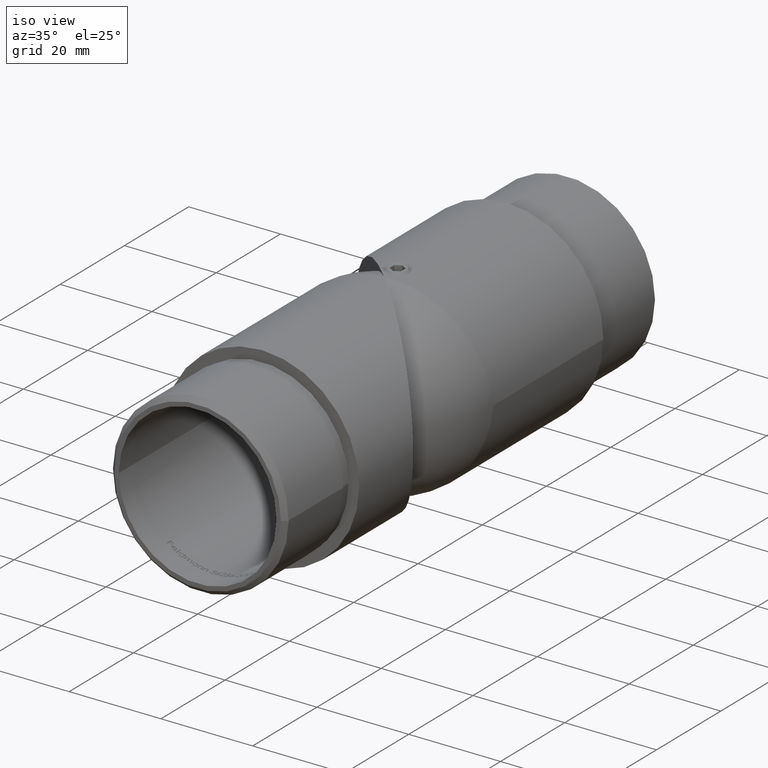
[diagram: clean part render]
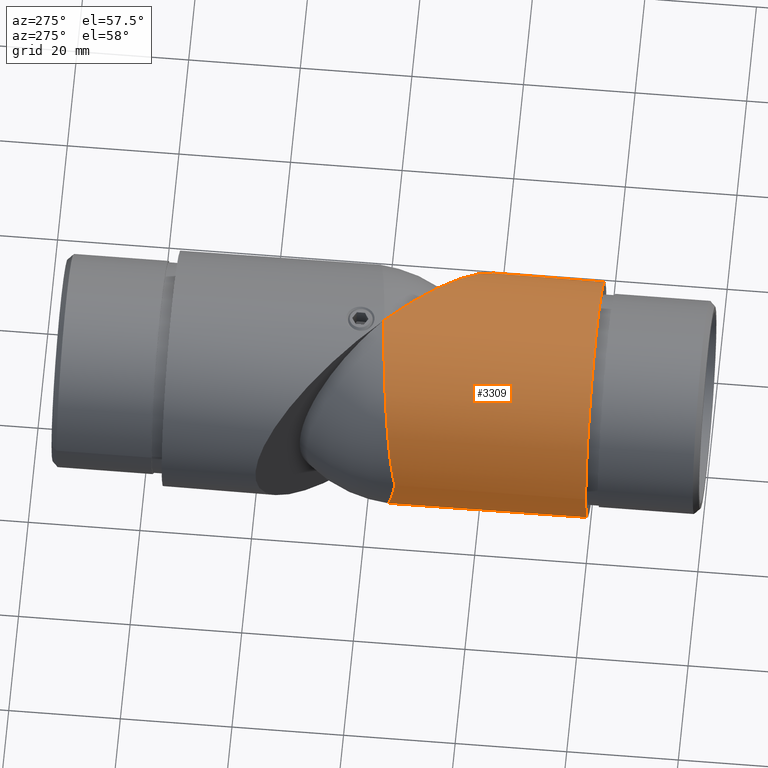
[diagram: tour spotlight — one face highlighted and labeled with its STEP entity id]
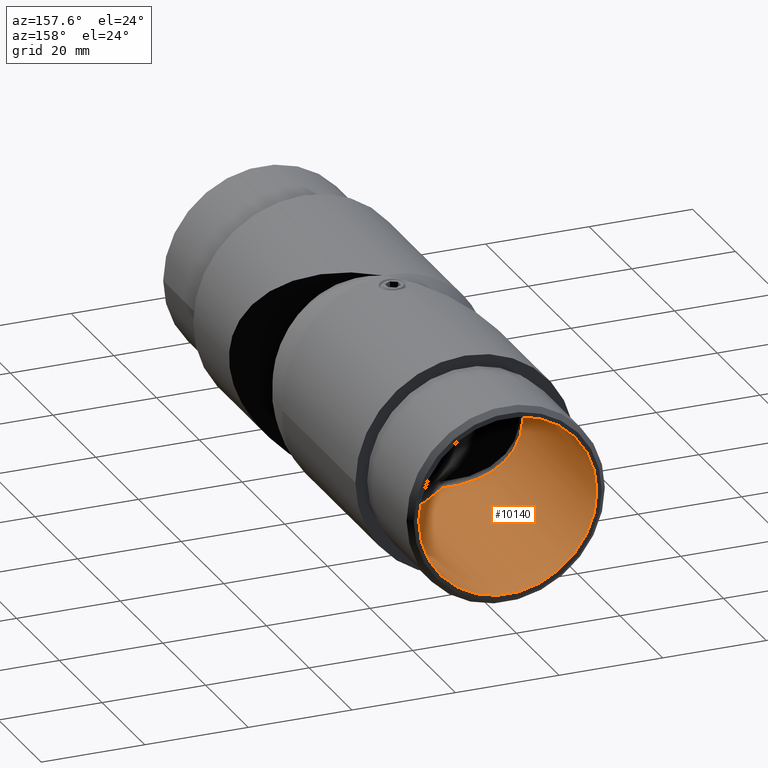
[diagram: tour spotlight — one face highlighted and labeled with its STEP entity id]
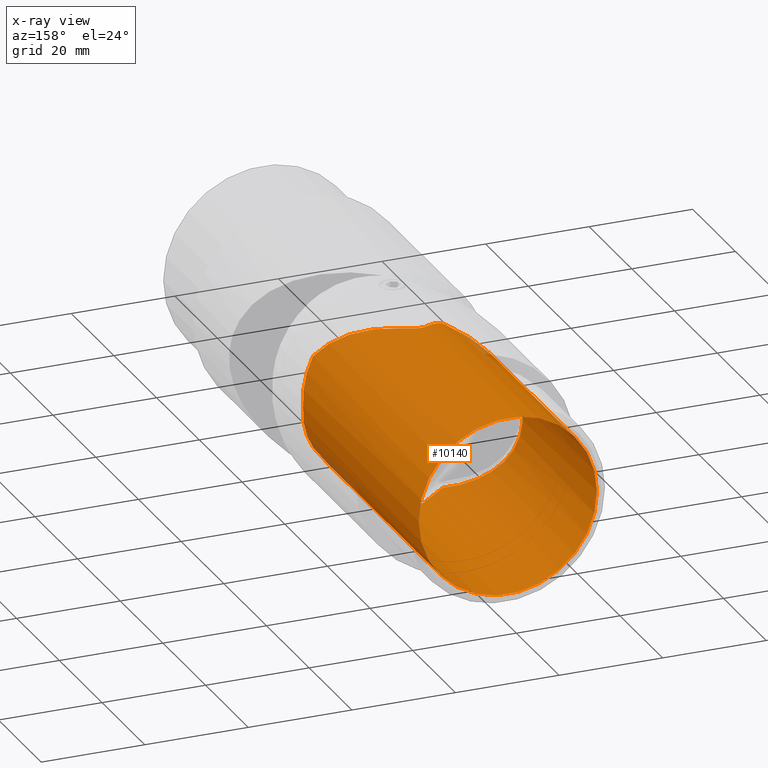
[diagram: x-ray of the same camera — body ghosted, this tour face saturated]
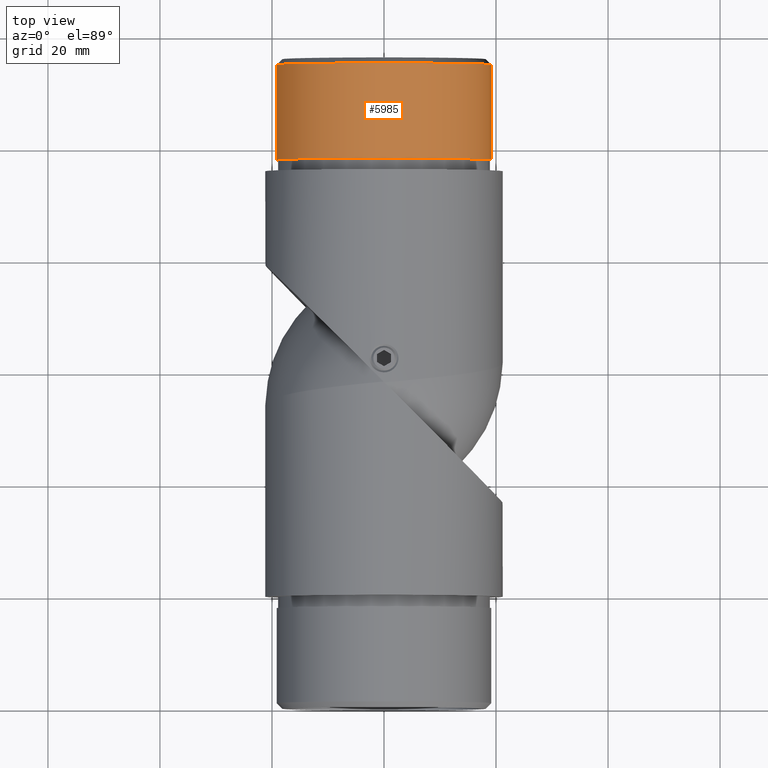
[diagram: tour spotlight — one face highlighted and labeled with its STEP entity id]
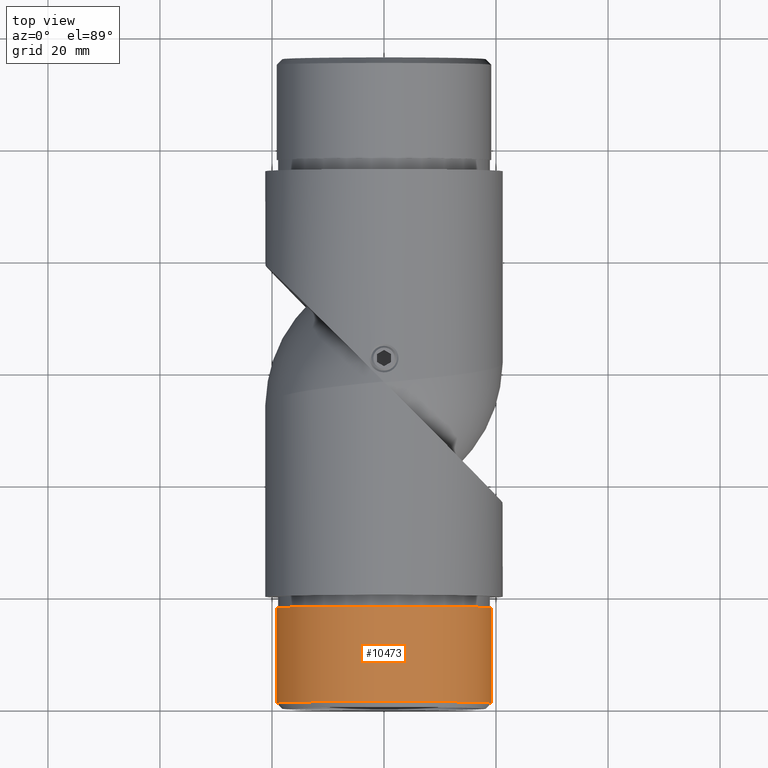
[diagram: tour spotlight — one face highlighted and labeled with its STEP entity id]
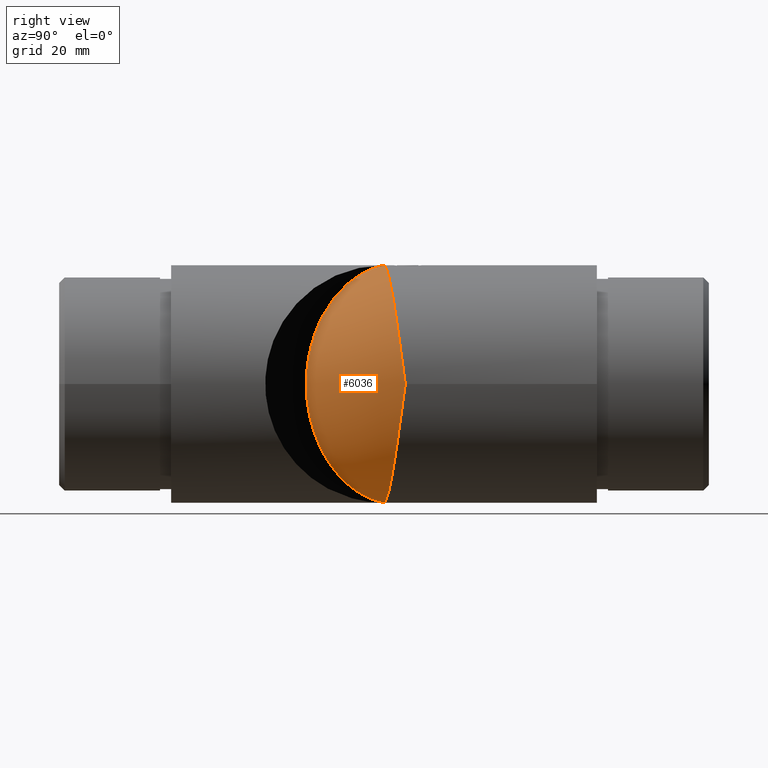
[diagram: tour spotlight — one face highlighted and labeled with its STEP entity id]
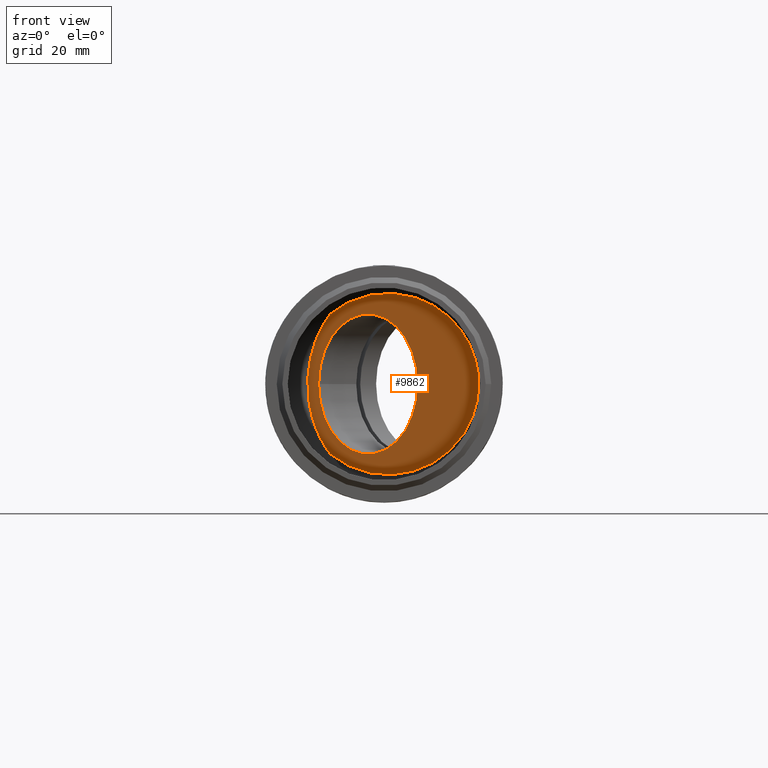
[diagram: tour spotlight — one face highlighted and labeled with its STEP entity id]
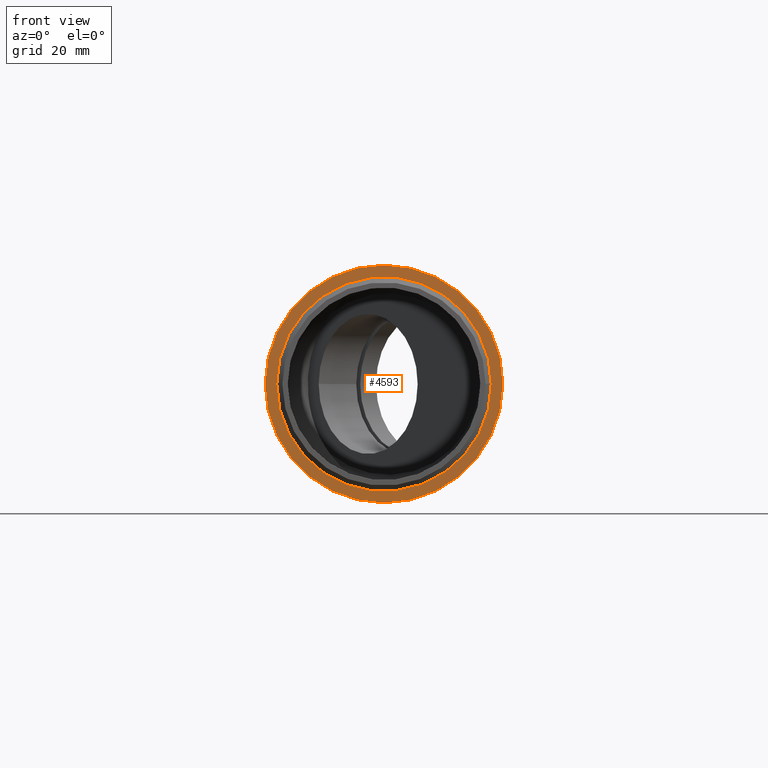
[diagram: tour spotlight — one face highlighted and labeled with its STEP entity id]
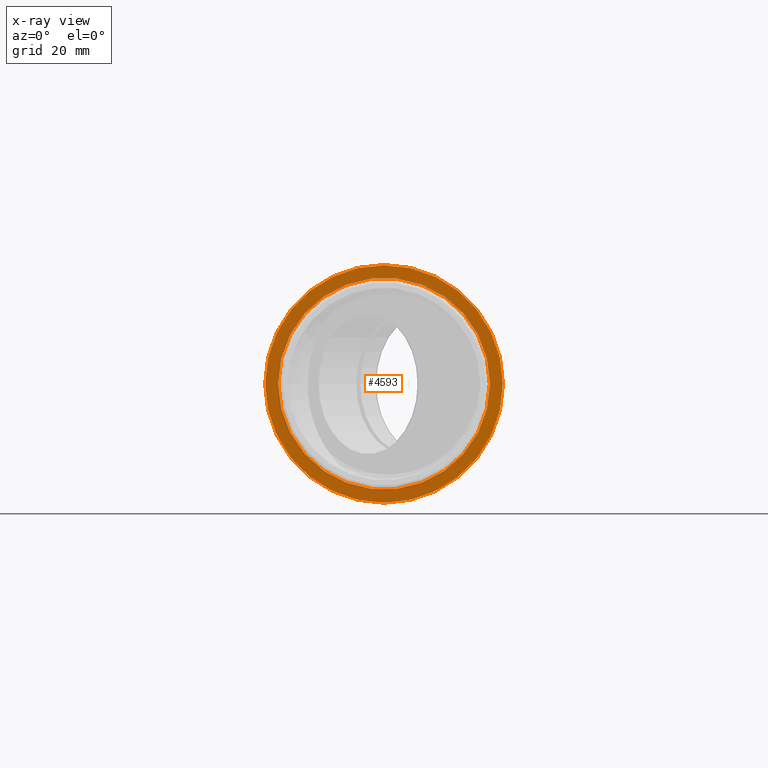
[diagram: x-ray of the same camera — body ghosted, this tour face saturated]
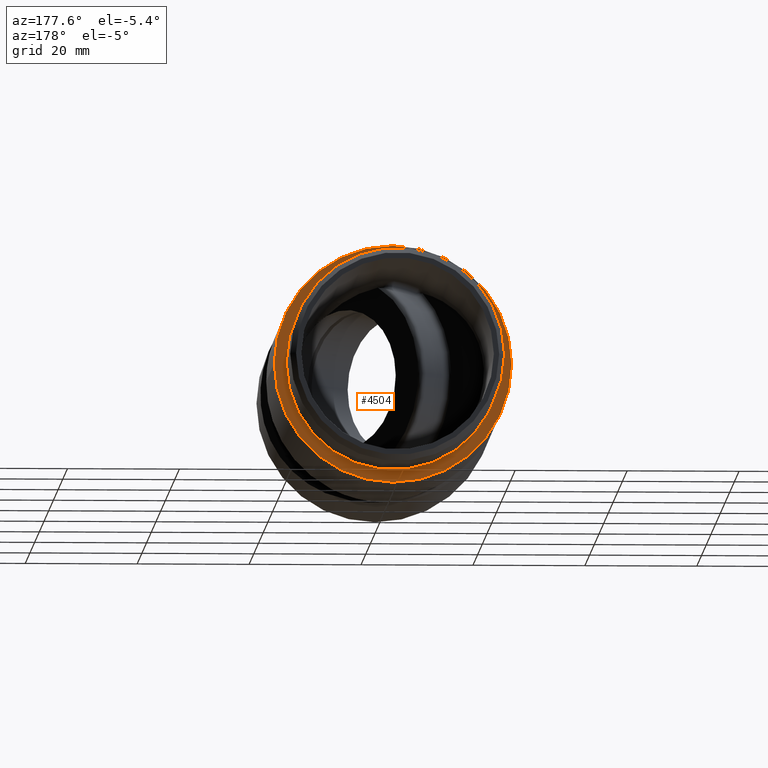
[diagram: tour spotlight — one face highlighted and labeled with its STEP entity id]
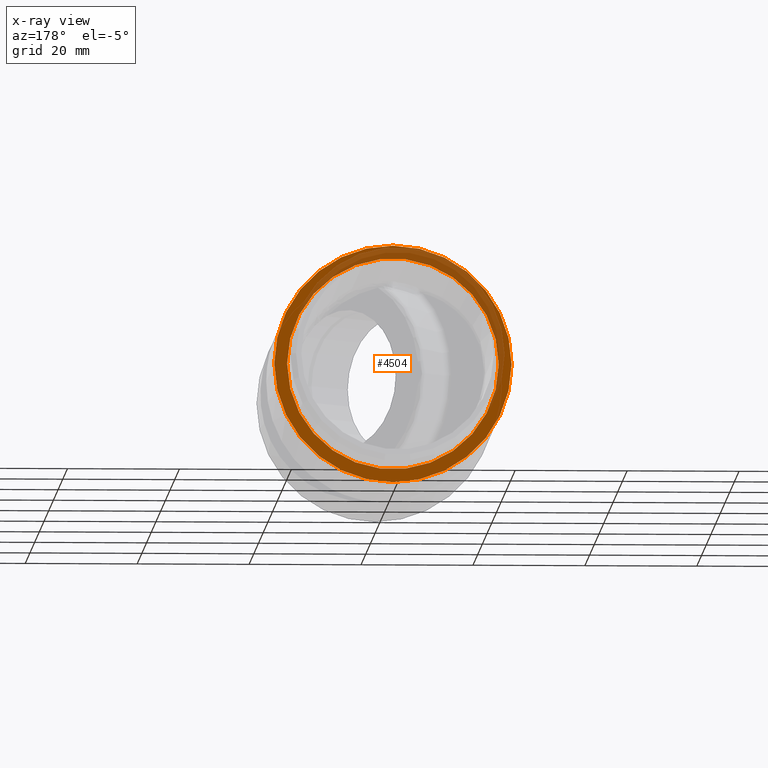
[diagram: x-ray of the same camera — body ghosted, this tour face saturated]
A machine part: a face-by-face anatomy tour. The part has 332 B-rep faces; the first image is the clean iso view, then the 8 largest visible faces are spotlighted one at a time (largest first), each with its STEP entity span.

Face 1 — auxiliary view, entity #3309. In plain terms, the highlighted cylindrical surface (bore or boss wall) has radius 21.2 mm, axis along (-0, 1, 0).
Definition (entity closure, byte-faithful):
#56 = CARTESIAN_POINT ( 'NONE',  ( -14.06331153729029600, 36.48982920910685800, 15.92391481971549700 ) ) ;
#182 = CARTESIAN_POINT ( 'NONE',  ( -6.921788509416588300, 37.39856833088968100, 20.08559825530413100 ) ) ;
#614 = CARTESIAN_POINT ( 'NONE',  ( -5.548781577216066900, 37.54293192070808500, -20.47283604794626300 ) ) ;
#729 = CARTESIAN_POINT ( 'NONE',  ( -16.87203388219777600, 36.00380187698669200, -12.91179433955674400 ) ) ;
#1105 = CARTESIAN_POINT ( 'NONE',  ( 0.0000000000000000000, 0.0000000000000000000, 0.0000000000000000000 ) ) ;
#1273 = CARTESIAN_POINT ( 'NONE',  ( 21.19999999999999900, 16.79999999999999700, -6.192270590510239700E-012 ) ) ;
#1447 = CARTESIAN_POINT ( 'NONE',  ( -15.52378780856726500, 36.24706245857496600, 14.45437514110131300 ) ) ;
#1567 = CARTESIAN_POINT ( 'NONE',  ( -20.49807827924106400, 34.94879709139150500, 5.454088436068977900 ) ) ;
#1584 = FACE_OUTER_BOUND ( 'NONE', #1850, .T. ) ;
#1850 = EDGE_LOOP ( 'NONE', ( #11972 ) ) ;
#2064 = CARTESIAN_POINT ( 'NONE',  ( -7.535870885603298300, 37.32767299252900300, -19.81847386008952900 ) ) ;
#2192 = VERTEX_POINT ( 'NONE', #10228 ) ;
#2193 = CARTESIAN_POINT ( 'NONE',  ( -18.38717911704300800, 35.66110987323229200, -10.57488074210316300 ) ) ;
#2502 = CARTESIAN_POINT ( 'NONE',  ( -19.03613012655217700, 35.48787134355357200, -9.356399328635960800 ) ) ;
#2634 = DIRECTION ( 'NONE',  ( -2.225770373877211500E-018, 1.000000000000000000, -0.0000000000000000000 ) ) ;
#2757 = CIRCLE ( 'NONE', #16229, 21.19999999999999900 ) ;
#3035 = CARTESIAN_POINT ( 'NONE',  ( -9.453744494866027600, 37.10653248628978000, 18.98813133816715700 ) ) ;
#3159 = CARTESIAN_POINT ( 'NONE',  ( -21.19150679897880000, 34.29638576942144100, 0.6927890106287382100 ) ) ;
#3309 = ADVANCED_FACE ( 'NONE', ( #11161, #1584 ), #13891, .T. ) ;
#3531 = CARTESIAN_POINT ( 'NONE',  ( -7.859261415422502700, 37.29136552802705000, -19.69243122131442900 ) ) ;
#3716 = CARTESIAN_POINT ( 'NONE',  ( -21.19999999999999900, 34.24782940267100900, -0.3432918895365472100 ) ) ;
#3843 = CARTESIAN_POINT ( 'NONE',  ( -20.65808743434720200, 34.86137573264753100, -4.813073411100089200 ) ) ;
#3924 = CARTESIAN_POINT ( 'NONE',  ( -0.07601385158659107500, 38.07601385158666600, -21.19986372348920200 ) ) ;
#4375 = VERTEX_POINT ( 'NONE', #15060 ) ;
#4433 = CARTESIAN_POINT ( 'NONE',  ( -1.473497291958202600, 37.94820681553149200, 21.19485293189751500 ) ) ;
#4496 = CARTESIAN_POINT ( 'NONE',  ( -0.07601385157421110300, 38.07601385157428800, 21.19986372349171000 ) ) ;
#4556 = CARTESIAN_POINT ( 'NONE',  ( -21.15757480065235900, 34.39202132626469000, 1.384538038196379000 ) ) ;
#5113 = EDGE_LOOP ( 'NONE', ( #9422, #14256, #18091 ) ) ;
#5153 = B_SPLINE_CURVE_WITH_KNOTS ( 'NONE', 3,
 ( #17928, #9393, #7874, #15050, #614, #16632, #15242, #2064, #3531, #15302, #18114, #6530, #7990, #18172, #9219, #9464, #729, #10920, #2193, #2502, #16946, #16879, #5302, #15549, #3843, #12463, #6648, #16817, #9714, #12647, #3716, #13969 ),
 .UNSPECIFIED., .F., .F.,
 ( 4, 2, 2, 2, 2, 2, 2, 2, 2, 2, 2, 2, 2, 2, 2, 4 ),
 ( 0.0004859000245178818000, 0.004645136504634069100, 0.006724754744692166800, 0.007764563864721215100, 0.008804372984750263500, 0.01296360946486644800, 0.01504322770492453500, 0.01712284594498262100, 0.02128208242509880400, 0.02336170066515689100, 0.02544131890521497700, 0.02752093714527306700, 0.02960055538533115300, 0.03168017362538923200, 0.03271998274541827700, 0.03375979186544731500 ),
 .UNSPECIFIED. ) ;
#5293 = EDGE_CURVE ( 'NONE', #12122, #2192, #7211, .T. ) ;
#5302 = CARTESIAN_POINT ( 'NONE',  ( -20.08684572817119800, 35.13508196728108900, -6.814451603539939800 ) ) ;
#6032 = CARTESIAN_POINT ( 'NONE',  ( -16.87087512907225000, 35.99737795962188600, 12.85689980902275000 ) ) ;
#6096 = CARTESIAN_POINT ( 'NONE',  ( -10.67632976168712700, 36.95579027734014200, 18.32862241166557000 ) ) ;
#6530 = CARTESIAN_POINT ( 'NONE',  ( -12.39488607478565500, 36.72843992885656700, -17.21297441497281600 ) ) ;
#6648 = CARTESIAN_POINT ( 'NONE',  ( -21.03024264058875300, 34.58183564362035900, -2.765597896791846600 ) ) ;
#7134 = CARTESIAN_POINT ( 'NONE',  ( 21.20000000000363700, 16.79999999999635900, 12.45400726601774400 ) ) ;
#7211 = B_SPLINE_CURVE_WITH_KNOTS ( 'NONE', 3,
 ( #17533, #7372, #3159, #4556, #8884, #10423, #14806, #13165, #1567, #8953, #17735, #14751, #13358, #11898, #6032, #11780, #1447, #56, #16194, #11636, #6096, #3035, #13220, #182, #7437, #13106, #4433, #4496 ),
 .UNSPECIFIED., .F., .F.,
 ( 4, 2, 2, 2, 2, 2, 2, 2, 2, 2, 2, 2, 2, 4 ),
 ( -0.0002267345123568672200, 0.0008130780714765195400, 0.001852890655309906400, 0.003932515822976684300, 0.006012140990643458800, 0.008091766158310234900, 0.01225101649364378900, 0.01433064166131056900, 0.01641026682897734800, 0.02056951716431090400, 0.02264914233197768600, 0.02472876749964446300, 0.02888801783497802300, 0.03304726817031158200 ),
 .UNSPECIFIED. ) ;
#7237 = CARTESIAN_POINT ( 'NONE',  ( -1.335462224326326700E-016, 60.00000000000000000, 0.0000000000000000000 ) ) ;
#7372 = CARTESIAN_POINT ( 'NONE',  ( -21.19999999999999900, 34.24782956199585700, 0.3432930331084851300 ) ) ;
#7437 = CARTESIAN_POINT ( 'NONE',  ( -5.601131045695235700, 37.53940413044803400, 20.49451847918123100 ) ) ;
#7874 = CARTESIAN_POINT ( 'NONE',  ( -2.845956738026874900, 37.81724074777951500, -21.05347292163228400 ) ) ;
#7990 = CARTESIAN_POINT ( 'NONE',  ( -12.95667167224925900, 36.64943132315873000, -16.79428366209944600 ) ) ;
#8884 = CARTESIAN_POINT ( 'NONE',  ( -21.13219192331343200, 34.43945060839266100, 1.728928319580532100 ) ) ;
#8953 = CARTESIAN_POINT ( 'NONE',  ( -20.09902754782023500, 35.13013840917129500, 6.778450076700358400 ) ) ;
#9219 = CARTESIAN_POINT ( 'NONE',  ( -14.53993593333013300, 36.41052789596239600, -15.44360877251201100 ) ) ;
#9393 = CARTESIAN_POINT ( 'NONE',  ( -1.471458834988109300, 37.94839324288798100, -21.19486024095156700 ) ) ;
#9422 = ORIENTED_EDGE ( 'NONE', *, *, #5293, .F. ) ;
#9464 = CARTESIAN_POINT ( 'NONE',  ( -15.99817491867134400, 36.16835470682796900, -13.97846753856135700 ) ) ;
#9714 = CARTESIAN_POINT ( 'NONE',  ( -21.15748232352909900, 34.39224212022472200, -1.386137272481728700 ) ) ;
#9989 = CARTESIAN_POINT ( 'NONE',  ( 12.37791335836666900, 25.62208664163335900, -21.24451830178658100 ) ) ;
#10228 = CARTESIAN_POINT ( 'NONE',  ( -0.07601385157421110300, 38.07601385157428800, 21.19986372349171000 ) ) ;
#10423 = CARTESIAN_POINT ( 'NONE',  ( -21.03116870069465000, 34.58075182653283300, 2.757690619871018300 ) ) ;
#10674 =( BOUNDED_CURVE ( )  B_SPLINE_CURVE ( 3, ( #16030, #11650, #7134, #1273, #14511, #9989, #11718 ),
 .UNSPECIFIED., .F., .T. ) 
 B_SPLINE_CURVE_WITH_KNOTS ( ( 4, 3, 4 ),
 ( 1.567210760075536300, 3.141592653590085300, 4.715974547104634600 ),
 .UNSPECIFIED. ) 
 CURVE ( )  GEOMETRIC_REPRESENTATION_ITEM ( )  RATIONAL_B_SPLINE_CURVE ( ( 1.000000000000000000, 0.8038919708325861200, 0.8038919708325861200, 1.000000000000000000, 0.8038919708325860100, 0.8038919708325860100, 1.000000000000000000 ) ) 
 REPRESENTATION_ITEM ( '' )  );
#10696 = CARTESIAN_POINT ( 'NONE',  ( -21.20000000000000300, 34.19999999999999600, 0.0000000000000000000 ) ) ;
#10920 = CARTESIAN_POINT ( 'NONE',  ( -18.03023835138628400, 35.74744722166658300, -11.17298058216602100 ) ) ;
#11161 = FACE_OUTER_BOUND ( 'NONE', #5113, .T. ) ;
#11568 = DIRECTION ( 'NONE',  ( -1.000000000000000000, -2.225770373877211500E-018, 0.0000000000000000000 ) ) ;
#11636 = CARTESIAN_POINT ( 'NONE',  ( -11.27681354530249700, 36.87866106970224000, 17.96536817404879100 ) ) ;
#11650 = CARTESIAN_POINT ( 'NONE',  ( 12.37791335837907700, 25.62208664162095000, 21.24451830177934000 ) ) ;
#11718 = CARTESIAN_POINT ( 'NONE',  ( -0.07601385158659107500, 38.07601385158666600, -21.19986372348920200 ) ) ;
#11780 = CARTESIAN_POINT ( 'NONE',  ( -15.98949056099261900, 36.16470038159541600, 13.93780800269273000 ) ) ;
#11898 = CARTESIAN_POINT ( 'NONE',  ( -17.28137778554534500, 35.91342404184132400, 12.29915906282127300 ) ) ;
#11972 = ORIENTED_EDGE ( 'NONE', *, *, #15855, .T. ) ;
#12122 = VERTEX_POINT ( 'NONE', #10696 ) ;
#12434 = VERTEX_POINT ( 'NONE', #3924 ) ;
#12463 = CARTESIAN_POINT ( 'NONE',  ( -20.92878601764071100, 34.67543671450516000, -3.450821341880703200 ) ) ;
#12647 = CARTESIAN_POINT ( 'NONE',  ( -21.19151545928838200, 34.29640111078769800, -0.6928977899742310200 ) ) ;
#13106 = CARTESIAN_POINT ( 'NONE',  ( -2.858863733026870200, 37.81605072509735500, 21.05290609014669600 ) ) ;
#13165 = CARTESIAN_POINT ( 'NONE',  ( -20.66416437573107200, 34.85766307801478100, 4.785862745798526800 ) ) ;
#13220 = CARTESIAN_POINT ( 'NONE',  ( -8.829928231759485200, 37.18040974718913800, 19.28595268019236300 ) ) ;
#13315 = AXIS2_PLACEMENT_3D ( 'NONE', #7237, #17406, #17520 ) ;
#13358 = CARTESIAN_POINT ( 'NONE',  ( -18.42527640252300400, 35.65954243909336400, 10.57594046730142700 ) ) ;
#13891 = CYLINDRICAL_SURFACE ( 'NONE', #13315, 21.19999999999999600 ) ;
#13969 = CARTESIAN_POINT ( 'NONE',  ( -21.20000000000000300, 34.19999999999999600, 0.0000000000000000000 ) ) ;
#14256 = ORIENTED_EDGE ( 'NONE', *, *, #15754, .F. ) ;
#14511 = CARTESIAN_POINT ( 'NONE',  ( 21.19999999999636500, 16.80000000000363200, -12.45400726603013400 ) ) ;
#14751 = CARTESIAN_POINT ( 'NONE',  ( -19.07186252301062300, 35.48764869516990200, 9.360917417746657400 ) ) ;
#14806 = CARTESIAN_POINT ( 'NONE',  ( -20.93071037710715400, 34.67363935951421200, 3.437664131138254300 ) ) ;
#15050 = CARTESIAN_POINT ( 'NONE',  ( -4.876947464899435800, 37.61251571859922600, -20.64297535189069800 ) ) ;
#15060 = CARTESIAN_POINT ( 'NONE',  ( -21.19999999999999900, -4.718633192619688500E-017, 0.0000000000000000000 ) ) ;
#15242 = CARTESIAN_POINT ( 'NONE',  ( -6.880928499453203200, 37.39998283979495900, -20.05527559354266700 ) ) ;
#15302 = CARTESIAN_POINT ( 'NONE',  ( -9.456149067783767800, 37.10889534448011100, -19.02468510231437200 ) ) ;
#15549 = CARTESIAN_POINT ( 'NONE',  ( -20.48820445617149800, 34.95384454793330100, -5.491047270462328100 ) ) ;
#15754 = EDGE_CURVE ( 'NONE', #12434, #12122, #5153, .T. ) ;
#15855 = EDGE_CURVE ( 'NONE', #4375, #4375, #2757, .T. ) ;
#16030 = CARTESIAN_POINT ( 'NONE',  ( -0.07601385157421110300, 38.07601385157428800, 21.19986372349171000 ) ) ;
#16194 = CARTESIAN_POINT ( 'NONE',  ( -13.00189105302691300, 36.64668680348540200, 16.80222421299609400 ) ) ;
#16229 = AXIS2_PLACEMENT_3D ( 'NONE', #1105, #2634, #11568 ) ;
#16632 = CARTESIAN_POINT ( 'NONE',  ( -6.548530593746205500, 37.43607379405647600, -20.16626503029763400 ) ) ;
#16817 = CARTESIAN_POINT ( 'NONE',  ( -21.13198842323667400, 34.43983993908384600, -1.731754772589124900 ) ) ;
#16879 = CARTESIAN_POINT ( 'NONE',  ( -19.85489945588153700, 35.22426898790551100, -7.462962638755017000 ) ) ;
#16946 = CARTESIAN_POINT ( 'NONE',  ( -19.32954206763730900, 35.40066477718507100, -8.733936524045596200 ) ) ;
#17406 = DIRECTION ( 'NONE',  ( -2.225770373877211500E-018, 1.000000000000000000, -0.0000000000000000000 ) ) ;
#17520 = DIRECTION ( 'NONE',  ( -1.000000000000000000, 0.0000000000000000000, 0.0000000000000000000 ) ) ;
#17533 = CARTESIAN_POINT ( 'NONE',  ( -21.20000000000000300, 34.19999999999999600, 0.0000000000000000000 ) ) ;
#17735 = CARTESIAN_POINT ( 'NONE',  ( -19.86448555986991600, 35.22081270099593600, 7.437936016889507200 ) ) ;
#17928 = CARTESIAN_POINT ( 'NONE',  ( -0.07601385158659107500, 38.07601385158666600, -21.19986372348920200 ) ) ;
#18091 = ORIENTED_EDGE ( 'NONE', *, *, #18671, .F. ) ;
#18114 = CARTESIAN_POINT ( 'NONE',  ( -10.67001592723336500, 36.95999110197534800, -18.37143206672479000 ) ) ;
#18172 = CARTESIAN_POINT ( 'NONE',  ( -14.02910578716423900, 36.49045967287769100, -15.90935244936391900 ) ) ;
#18671 = EDGE_CURVE ( 'NONE', #2192, #12434, #10674, .T. ) ;

Face 2 — auxiliary view, entity #10140. An x-ray twin of the same camera follows (body ghosted, this face saturated) — the face is partly hidden behind the body. In plain terms, the highlighted cylindrical surface (bore or boss wall) has radius 17.2 mm, axis along (-0, -1, -0).
Definition (entity closure, byte-faithful):
#2 = CARTESIAN_POINT ( 'NONE',  ( 6.029379466353096200, 25.25009803959269000, 16.10858725185789800 ) ) ;
#158 = ORIENTED_EDGE ( 'NONE', *, *, #1039, .T. ) ;
#251 = DIRECTION ( 'NONE',  ( -2.225770373877210300E-018, 1.000000000000000000, 0.0000000000000000000 ) ) ;
#316 = VERTEX_POINT ( 'NONE', #8611 ) ;
#527 = ORIENTED_EDGE ( 'NONE', *, *, #14807, .T. ) ;
#553 = CARTESIAN_POINT ( 'NONE',  ( -0.8872284535162776600, 22.97636425024843400, -17.17799563439167800 ) ) ;
#665 = CARTESIAN_POINT ( 'NONE',  ( -0.7049103638379460300, 22.89643805993496500, -17.18655032936623400 ) ) ;
#704 = EDGE_CURVE ( 'NONE', #17173, #316, #5211, .T. ) ;
#712 = CARTESIAN_POINT ( 'NONE',  ( -1.233085246992390300, 23.14023605720770500, 17.15891730444429400 ) ) ;
#941 = CARTESIAN_POINT ( 'NONE',  ( 23.76674036040376900, 8.543979057986771200, 9.469564357435619000 ) ) ;
#972 = ORIENTED_EDGE ( 'NONE', *, *, #16916, .T. ) ;
#997 = VERTEX_POINT ( 'NONE', #10103 ) ;
#1033 = EDGE_LOOP ( 'NONE', ( #11921 ) ) ;
#1039 = EDGE_CURVE ( 'NONE', #2564, #13509, #12587, .T. ) ;
#1626 = CARTESIAN_POINT ( 'NONE',  ( 1.760714298391016900, 22.90662396943620000, 17.10964304593878500 ) ) ;
#1672 = VERTEX_POINT ( 'NONE', #6911 ) ;
#1794 = ORIENTED_EDGE ( 'NONE', *, *, #3476, .F. ) ;
#1804 = CARTESIAN_POINT ( 'NONE',  ( -16.13677415013678000, 35.14932005652011100, 6.158295565574225500 ) ) ;
#1865 = CARTESIAN_POINT ( 'NONE',  ( -14.70421677826379400, 35.58586448666816400, 8.923340682604562700 ) ) ;
#2176 = CARTESIAN_POINT ( 'NONE',  ( -2.200423533130225500, 23.80903596507631200, 17.06111644103788200 ) ) ;
#2235 = CARTESIAN_POINT ( 'NONE',  ( 1.034122766400735100, 22.61225599760815500, 17.16996163683647600 ) ) ;
#2379 = VERTEX_POINT ( 'NONE', #14775 ) ;
#2564 = VERTEX_POINT ( 'NONE', #6090 ) ;
#2925 = ORIENTED_EDGE ( 'NONE', *, *, #7755, .T. ) ;
#2957 = CARTESIAN_POINT ( 'NONE',  ( -17.09314703725424800, 34.50409639023905600, -1.953702481128825100 ) ) ;
#2985 = CARTESIAN_POINT ( 'NONE',  ( -17.19999999999999900, 34.20000000000000300, 3.469446951953614200E-015 ) ) ;
#3053 = FACE_OUTER_BOUND ( 'NONE', #1033, .T. ) ;
#3101 = CARTESIAN_POINT ( 'NONE',  ( 5.285439246629072900, 24.98124555319240900, 16.38704108613072900 ) ) ;
#3149 = CARTESIAN_POINT ( 'NONE',  ( -17.09304518793103600, 34.50423236131324200, 1.954584043007867400 ) ) ;
#3154 = CARTESIAN_POINT ( 'NONE',  ( -17.19999999999999900, 34.20000000000000300, 3.469446951953614200E-015 ) ) ;
#3398 = CARTESIAN_POINT ( 'NONE',  ( 0.2418541220524139400, 22.62682392800755300, -17.19938758101404400 ) ) ;
#3476 = EDGE_CURVE ( 'NONE', #997, #2379, #6943, .T. ) ;
#3550 = CARTESIAN_POINT ( 'NONE',  ( 4.554269761007890200, 24.65166113836763600, -16.60227489925505800 ) ) ;
#3757 =( BOUNDED_CURVE ( )  B_SPLINE_CURVE ( 3, ( #12995, #4324, #5741, #15785 ),
 .UNSPECIFIED., .F., .T. ) 
 B_SPLINE_CURVE_WITH_KNOTS ( ( 4, 4 ),
 ( 0.5454453580421694300, 1.425726918931306400 ),
 .UNSPECIFIED. ) 
 CURVE ( )  GEOMETRIC_REPRESENTATION_ITEM ( )  RATIONAL_B_SPLINE_CURVE ( ( 1.000000000000000000, 0.9364611268714755400, 0.9364611268714755400, 1.000000000000000000 ) ) 
 REPRESENTATION_ITEM ( '' )  );
#3811 = CARTESIAN_POINT ( 'NONE',  ( 6.029379466353096200, 25.25009803959269000, 16.10858725185789800 ) ) ;
#3867 = CARTESIAN_POINT ( 'NONE',  ( 23.76674036040376600, 8.543979057986778300, -9.469564357435642100 ) ) ;
#4048 = B_SPLINE_CURVE_WITH_KNOTS ( 'NONE', 3,
 ( #1626, #11835, #7561, #14935, #3101, #7624 ),
 .UNSPECIFIED., .F., .F.,
 ( 4, 2, 4 ),
 ( 0.0000000000000000000, 0.002510637642362100200, 0.005021275284724201200 ),
 .UNSPECIFIED. ) ;
#4294 = AXIS2_PLACEMENT_3D ( 'NONE', #18816, #10090, #12841 ) ;
#4324 = CARTESIAN_POINT ( 'NONE',  ( -11.99761608902684400, 33.03662430260687400, 13.38337921327945200 ) ) ;
#4532 = CARTESIAN_POINT ( 'NONE',  ( -14.70421677826324500, 35.58586448666829200, -8.923340682605456200 ) ) ;
#4550 = CARTESIAN_POINT ( 'NONE',  ( -15.51633800955621600, 35.36952728593341500, -7.585096737886414300 ) ) ;
#4610 = CARTESIAN_POINT ( 'NONE',  ( -16.93350570490792600, 34.68294524235948700, 3.115566538076853100 ) ) ;
#4802 = ORIENTED_EDGE ( 'NONE', *, *, #12871, .F. ) ;
#4861 = CARTESIAN_POINT ( 'NONE',  ( -1.895414721991588700, 23.56713379727330300, -17.09838838734635000 ) ) ;
#4924 = AXIS2_PLACEMENT_3D ( 'NONE', #8967, #251, #14571 ) ;
#5090 = CARTESIAN_POINT ( 'NONE',  ( 1.760714298391016900, 22.90662396943620000, 17.10964304593878500 ) ) ;
#5211 = B_SPLINE_CURVE_WITH_KNOTS ( 'NONE', 3,
 ( #10883, #8010, #3550, #10758, #18189, #15201 ),
 .UNSPECIFIED., .F., .F.,
 ( 4, 2, 4 ),
 ( 0.0000000000000000000, 0.002489126808648289300, 0.004978253617296578600 ),
 .UNSPECIFIED. ) ;
#5398 = CARTESIAN_POINT ( 'NONE',  ( 6.029379466353096200, 25.25009803959269700, -16.10858725185793700 ) ) ;
#5741 = CARTESIAN_POINT ( 'NONE',  ( -7.648702448299209400, 28.94055447820060300, 16.26514622877698100 ) ) ;
#5962 = CARTESIAN_POINT ( 'NONE',  ( -17.13313736135691200, 34.44405701877285300, -1.564886786686625400 ) ) ;
#6026 = CARTESIAN_POINT ( 'NONE',  ( -14.70421677826324500, 35.58586448666829200, -8.923340682605456200 ) ) ;
#6090 = CARTESIAN_POINT ( 'NONE',  ( -14.70421677826324500, 35.58586448666829200, -8.923340682605456200 ) ) ;
#6344 = CARTESIAN_POINT ( 'NONE',  ( 0.8332713774220071900, 22.59479833949448500, -17.18093056417120200 ) ) ;
#6386 = CARTESIAN_POINT ( 'NONE',  ( -2.486451072277885600, 24.07843399613399200, 17.01932904274335100 ) ) ;
#6629 = CARTESIAN_POINT ( 'NONE',  ( 1.601299663483972000, 22.78620528704347600, 17.12604804201614400 ) ) ;
#6732 = ORIENTED_EDGE ( 'NONE', *, *, #704, .T. ) ;
#6911 = CARTESIAN_POINT ( 'NONE',  ( -2.486451072277885600, 24.07843399613400600, -17.01932904274339400 ) ) ;
#6923 =( BOUNDED_CURVE ( )  B_SPLINE_CURVE ( 3, ( #11234, #16115, #8679, #4532 ),
 .UNSPECIFIED., .F., .T. ) 
 B_SPLINE_CURVE_WITH_KNOTS ( ( 4, 4 ),
 ( 4.857458388248280000, 5.737739949137365500 ),
 .UNSPECIFIED. ) 
 CURVE ( )  GEOMETRIC_REPRESENTATION_ITEM ( )  RATIONAL_B_SPLINE_CURVE ( ( 1.000000000000000000, 0.9364611268714827500, 0.9364611268714827500, 1.000000000000000000 ) ) 
 REPRESENTATION_ITEM ( '' )  );
#6943 = B_SPLINE_CURVE_WITH_KNOTS ( 'NONE', 3,
 ( #5090, #6629, #7970, #2235, #18152, #12380, #15286, #13696, #9445, #15222, #712, #16801, #2176, #6386 ),
 .UNSPECIFIED., .F., .F.,
 ( 4, 2, 2, 2, 2, 2, 4 ),
 ( 0.0000000000000000000, 0.0005912061406825212300, 0.001182412281365042500, 0.001773618422047563600, 0.002364824562730084900, 0.003547236844095128000, 0.004729649125460171600 ),
 .UNSPECIFIED. ) ;
#7491 = CARTESIAN_POINT ( 'NONE',  ( -17.18659466495926900, 34.32278336745229600, -0.7837284738122664000 ) ) ;
#7561 = CARTESIAN_POINT ( 'NONE',  ( 3.125783174130672300, 23.86692137128562400, 16.92945316408025700 ) ) ;
#7624 = CARTESIAN_POINT ( 'NONE',  ( 6.029379466353096200, 25.25009803959269000, 16.10858725185789800 ) ) ;
#7743 = CARTESIAN_POINT ( 'NONE',  ( -0.3340764152032042500, 22.76193095932463000, -17.19775577782431600 ) ) ;
#7755 = EDGE_CURVE ( 'NONE', #1672, #2564, #6923, .T. ) ;
#7760 = VERTEX_POINT ( 'NONE', #17453 ) ;
#7970 = CARTESIAN_POINT ( 'NONE',  ( 1.417813100994225000, 22.70814863261771400, 17.14254352530785000 ) ) ;
#8010 = CARTESIAN_POINT ( 'NONE',  ( 5.285439246629068500, 24.98124555319242600, -16.38704108613077200 ) ) ;
#8611 = CARTESIAN_POINT ( 'NONE',  ( 1.760714298391016900, 22.90662396943621100, -17.10964304593878200 ) ) ;
#8679 = CARTESIAN_POINT ( 'NONE',  ( -11.99761608902632500, 33.03662430260639100, -13.38337921327978600 ) ) ;
#8823 = CARTESIAN_POINT ( 'NONE',  ( -16.77444550057885300, 34.80033327698711800, -3.883059857319470300 ) ) ;
#8939 = CARTESIAN_POINT ( 'NONE',  ( -17.18654656357867300, 34.32294382454042400, 0.7847585350989856300 ) ) ;
#8967 = CARTESIAN_POINT ( 'NONE',  ( -6.938893903907228400E-015, 60.00000000000000000, 0.0000000000000000000 ) ) ;
#9278 = CARTESIAN_POINT ( 'NONE',  ( -1.237035509032687700, 23.15344749120159700, -17.15635309421267600 ) ) ;
#9445 = CARTESIAN_POINT ( 'NONE',  ( -0.3289875297780370800, 22.76032395407776900, 17.19785715632782400 ) ) ;
#9992 = EDGE_CURVE ( 'NONE', #18747, #17173, #14517, .T. ) ;
#10090 = DIRECTION ( 'NONE',  ( -5.540639898357055100E-018, -1.000000000000000000, 0.0000000000000000000 ) ) ;
#10103 = CARTESIAN_POINT ( 'NONE',  ( 1.760714298391016900, 22.90662396943620000, 17.10964304593878500 ) ) ;
#10140 = ADVANCED_FACE ( 'NONE', ( #14467, #3053 ), #11975, .F. ) ;
#10345 = CARTESIAN_POINT ( 'NONE',  ( -17.20000000000000300, 34.26131670251719200, 0.3903650441469653200 ) ) ;
#10412 = CARTESIAN_POINT ( 'NONE',  ( -17.13305121949695600, 34.44420097790079200, 1.565817566181553200 ) ) ;
#10544 = VERTEX_POINT ( 'NONE', #13655 ) ;
#10735 = CARTESIAN_POINT ( 'NONE',  ( 1.601467271437857900, 22.78633189479803200, -17.12603079386431700 ) ) ;
#10737 = CIRCLE ( 'NONE', #4294, 17.19999999999999900 ) ;
#10758 = CARTESIAN_POINT ( 'NONE',  ( 3.125783174130661600, 23.86692137128563100, -16.92945316408025000 ) ) ;
#10799 = ORIENTED_EDGE ( 'NONE', *, *, #9992, .T. ) ;
#10802 = CARTESIAN_POINT ( 'NONE',  ( 1.760714298391016900, 22.90662396943621100, -17.10964304593878200 ) ) ;
#10883 = CARTESIAN_POINT ( 'NONE',  ( 6.029379466353096200, 25.25009803959269700, -16.10858725185793700 ) ) ;
#10919 = CARTESIAN_POINT ( 'NONE',  ( -2.486451072277885600, 24.07843399613400600, -17.01932904274339400 ) ) ;
#11234 = CARTESIAN_POINT ( 'NONE',  ( -2.486451072277885600, 24.07843399613400600, -17.01932904274339400 ) ) ;
#11345 = CARTESIAN_POINT ( 'NONE',  ( 6.029379466353096200, 25.25009803959269700, -16.10858725185793700 ) ) ;
#11702 = CARTESIAN_POINT ( 'NONE',  ( -16.13692336813935300, 35.14926746194262100, -6.157954777396613900 ) ) ;
#11835 = CARTESIAN_POINT ( 'NONE',  ( 2.427092172074682100, 23.40999271956031800, 17.04106762053827100 ) ) ;
#11921 = ORIENTED_EDGE ( 'NONE', *, *, #17660, .T. ) ;
#11975 = CYLINDRICAL_SURFACE ( 'NONE', #4924, 17.19999999999999600 ) ;
#12258 = CARTESIAN_POINT ( 'NONE',  ( -16.77429148313461800, 34.80043210570298800, 3.883705228285339900 ) ) ;
#12274 = CARTESIAN_POINT ( 'NONE',  ( 1.415945723158500200, 22.70751184799496500, -17.14269377554871800 ) ) ;
#12380 = CARTESIAN_POINT ( 'NONE',  ( 0.4406127748910228000, 22.60186303330792500, 17.19550616398683800 ) ) ;
#12587 = B_SPLINE_CURVE_WITH_KNOTS ( 'NONE', 3,
 ( #6026, #4550, #11702, #8823, #17599, #2957, #5962, #7491, #17668, #3154 ),
 .UNSPECIFIED., .F., .F.,
 ( 4, 2, 2, 2, 4 ),
 ( 0.01276537737153087000, 0.01747870292541129100, 0.01983536570235149700, 0.02101369709082160500, 0.02219202847929170600 ),
 .UNSPECIFIED. ) ;
#12841 = DIRECTION ( 'NONE',  ( 1.000000000000000000, 0.0000000000000000000, -1.710569414459005200E-049 ) ) ;
#12871 = EDGE_CURVE ( 'NONE', #1672, #316, #15109, .T. ) ;
#12995 = CARTESIAN_POINT ( 'NONE',  ( -14.70421677826379400, 35.58586448666816400, 8.923340682604562700 ) ) ;
#13277 = ORIENTED_EDGE ( 'NONE', *, *, #16514, .T. ) ;
#13509 = VERTEX_POINT ( 'NONE', #2985 ) ;
#13592 = CARTESIAN_POINT ( 'NONE',  ( 0.4400121932208061500, 22.60207263083844300, -17.19549666363609200 ) ) ;
#13655 = CARTESIAN_POINT ( 'NONE',  ( 17.19999999999999900, -20.00000000000000400, -2.942179392869488800E-048 ) ) ;
#13696 = CARTESIAN_POINT ( 'NONE',  ( -0.1387051980981993100, 22.70525881687158800, 17.20051417497738200 ) ) ;
#14467 = FACE_OUTER_BOUND ( 'NONE', #15333, .T. ) ;
#14517 =( BOUNDED_CURVE ( )  B_SPLINE_CURVE ( 3, ( #3811, #941, #3867, #11345 ),
 .UNSPECIFIED., .F., .F. ) 
 B_SPLINE_CURVE_WITH_KNOTS ( ( 4, 4 ),
 ( 1.928949632025254800, 4.354235675154332500 ),
 .UNSPECIFIED. ) 
 CURVE ( )  GEOMETRIC_REPRESENTATION_ITEM ( )  RATIONAL_B_SPLINE_CURVE ( ( 1.000000000000000000, 0.5670302118741513700, 0.5670302118741513700, 1.000000000000000000 ) ) 
 REPRESENTATION_ITEM ( '' )  );
#14571 = DIRECTION ( 'NONE',  ( -1.000000000000000000, 0.0000000000000000000, 2.565854121688508200E-049 ) ) ;
#14650 = B_SPLINE_CURVE_WITH_KNOTS ( 'NONE', 3,
 ( #17524, #10345, #8939, #10412, #3149, #4610, #12258, #1804, #17972, #1865 ),
 .UNSPECIFIED., .F., .F.,
 ( 4, 2, 2, 2, 4 ),
 ( -0.0001843069077945682400, 0.001001130998853736100, 0.002186568905502040400, 0.004557444718798645500, 0.009299196345391856600 ),
 .UNSPECIFIED. ) ;
#14775 = CARTESIAN_POINT ( 'NONE',  ( -2.486451072277885600, 24.07843399613399200, 17.01932904274335100 ) ) ;
#14807 = EDGE_CURVE ( 'NONE', #13509, #7760, #14650, .T. ) ;
#14935 = CARTESIAN_POINT ( 'NONE',  ( 4.554269761007899000, 24.65166113836762200, 16.60227489925504700 ) ) ;
#15109 = B_SPLINE_CURVE_WITH_KNOTS ( 'NONE', 3,
 ( #10919, #15119, #4861, #16577, #9278, #553, #665, #7743, #17927, #3398, #13592, #6344, #18046, #12274, #10735, #10802 ),
 .UNSPECIFIED., .F., .F.,
 ( 4, 2, 2, 2, 2, 2, 2, 4 ),
 ( 0.0000000000000000000, 0.001169080758142773700, 0.001753621137214160500, 0.002338161516285547400, 0.002922701895356934200, 0.003507242274428321000, 0.004091782653499707900, 0.004676323032571094700 ),
 .UNSPECIFIED. ) ;
#15119 = CARTESIAN_POINT ( 'NONE',  ( -2.200378603257974000, 23.80899364740594100, -17.06112300509980200 ) ) ;
#15201 = CARTESIAN_POINT ( 'NONE',  ( 1.760714298391016900, 22.90662396943621100, -17.10964304593878200 ) ) ;
#15222 = CARTESIAN_POINT ( 'NONE',  ( -0.8861534242712129100, 22.96170915619181200, 17.18117651284324100 ) ) ;
#15286 = CARTESIAN_POINT ( 'NONE',  ( 0.2456210116291534200, 22.62632979430125600, 17.19931967649370500 ) ) ;
#15333 = EDGE_LOOP ( 'NONE', ( #527, #13277, #1794, #972, #10799, #6732, #4802, #2925, #158 ) ) ;
#15785 = CARTESIAN_POINT ( 'NONE',  ( -2.486451072277885600, 24.07843399613399200, 17.01932904274335100 ) ) ;
#16115 = CARTESIAN_POINT ( 'NONE',  ( -7.648702448298888800, 28.94055447820030100, -16.26514622877702400 ) ) ;
#16514 = EDGE_CURVE ( 'NONE', #7760, #2379, #3757, .T. ) ;
#16577 = CARTESIAN_POINT ( 'NONE',  ( -1.405697234954136800, 23.25098969312350100, -17.14324607205015700 ) ) ;
#16801 = CARTESIAN_POINT ( 'NONE',  ( -1.890486395362766600, 23.56328835689943800, 17.09897667920675300 ) ) ;
#16916 = EDGE_CURVE ( 'NONE', #997, #18747, #4048, .T. ) ;
#17173 = VERTEX_POINT ( 'NONE', #5398 ) ;
#17453 = CARTESIAN_POINT ( 'NONE',  ( -14.70421677826379400, 35.58586448666816400, 8.923340682604562700 ) ) ;
#17524 = CARTESIAN_POINT ( 'NONE',  ( -17.19999999999999900, 34.20000000000000300, 3.469446951953614200E-015 ) ) ;
#17599 = CARTESIAN_POINT ( 'NONE',  ( -16.93364524868391300, 34.68283262078952600, -3.114831404679004200 ) ) ;
#17660 = EDGE_CURVE ( 'NONE', #10544, #10544, #10737, .T. ) ;
#17668 = CARTESIAN_POINT ( 'NONE',  ( -17.20000000000000600, 34.26094911829761700, -0.3880248656646007000 ) ) ;
#17927 = CARTESIAN_POINT ( 'NONE',  ( -0.1450633471529126100, 22.70685147291198500, -17.20047624932538000 ) ) ;
#17972 = CARTESIAN_POINT ( 'NONE',  ( -15.51624093476109100, 35.36955314523700600, 7.585256701388919600 ) ) ;
#18046 = CARTESIAN_POINT ( 'NONE',  ( 1.032981457954806900, 22.61214218741839600, -17.17002625160163000 ) ) ;
#18152 = CARTESIAN_POINT ( 'NONE',  ( 0.8381912800242689000, 22.59490859676209600, 17.18071614430543900 ) ) ;
#18189 = CARTESIAN_POINT ( 'NONE',  ( 2.427092172074679400, 23.40999271956032500, -17.04106762053826800 ) ) ;
#18747 = VERTEX_POINT ( 'NONE', #2 ) ;
#18816 = CARTESIAN_POINT ( 'NONE',  ( 0.0000000000000000000, -20.00000000000000400, 0.0000000000000000000 ) ) ;

Face 3 — top view, entity #5985. In plain terms, the highlighted cylindrical surface (bore or boss wall) has radius 19.15 mm, axis along (-0, -1, -0).
Definition (entity closure, byte-faithful):
#1271 = AXIS2_PLACEMENT_3D ( 'NONE', #17698, #10384, #11992 ) ;
#1898 = CIRCLE ( 'NONE', #16727, 19.15000000000000200 ) ;
#2027 = ORIENTED_EDGE ( 'NONE', *, *, #18452, .T. ) ;
#3257 = DIRECTION ( 'NONE',  ( 1.000000000000000000, 0.0000000000000000000, -1.710569414459005200E-049 ) ) ;
#3560 = DIRECTION ( 'NONE',  ( 1.000000000000000000, 0.0000000000000000000, -1.197398590121303800E-048 ) ) ;
#3746 = CARTESIAN_POINT ( 'NONE',  ( 0.0000000000000000000, -19.00000000000000400, 0.0000000000000000000 ) ) ;
#3927 = CIRCLE ( 'NONE', #16348, 19.15000000000000200 ) ;
#5985 = ADVANCED_FACE ( 'NONE', ( #11594, #14539 ), #11122, .T. ) ;
#6429 = VERTEX_POINT ( 'NONE', #12092 ) ;
#10384 = DIRECTION ( 'NONE',  ( 5.540639898357055100E-018, 1.000000000000000000, 0.0000000000000000000 ) ) ;
#11122 = CYLINDRICAL_SURFACE ( 'NONE', #1271, 19.15000000000000200 ) ;
#11594 = FACE_OUTER_BOUND ( 'NONE', #13461, .T. ) ;
#11992 = DIRECTION ( 'NONE',  ( -1.000000000000000000, 0.0000000000000000000, 1.710569414459005200E-049 ) ) ;
#12092 = CARTESIAN_POINT ( 'NONE',  ( 19.15000000000000200, -19.00000000000000400, -2.293018300082297200E-047 ) ) ;
#12426 = DIRECTION ( 'NONE',  ( 5.540639898357055100E-018, 1.000000000000000000, -0.0000000000000000000 ) ) ;
#13387 = DIRECTION ( 'NONE',  ( -5.540639898357055100E-018, -1.000000000000000000, 0.0000000000000000000 ) ) ;
#13461 = EDGE_LOOP ( 'NONE', ( #2027 ) ) ;
#13836 = EDGE_CURVE ( 'NONE', #18266, #18266, #3927, .T. ) ;
#14539 = FACE_OUTER_BOUND ( 'NONE', #16185, .T. ) ;
#14657 = ORIENTED_EDGE ( 'NONE', *, *, #13836, .T. ) ;
#14945 = CARTESIAN_POINT ( 'NONE',  ( 19.15000000000000200, -2.000000000000001800, -3.275740428688995300E-048 ) ) ;
#16185 = EDGE_LOOP ( 'NONE', ( #14657 ) ) ;
#16348 = AXIS2_PLACEMENT_3D ( 'NONE', #16423, #13387, #3257 ) ;
#16423 = CARTESIAN_POINT ( 'NONE',  ( 0.0000000000000000000, -2.000000000000001800, 0.0000000000000000000 ) ) ;
#16727 = AXIS2_PLACEMENT_3D ( 'NONE', #3746, #12426, #3560 ) ;
#17698 = CARTESIAN_POINT ( 'NONE',  ( 0.0000000000000000000, -20.00000000000000400, 0.0000000000000000000 ) ) ;
#18266 = VERTEX_POINT ( 'NONE', #14945 ) ;
#18452 = EDGE_CURVE ( 'NONE', #6429, #6429, #1898, .T. ) ;

Face 4 — top view, entity #10473. In plain terms, the highlighted cylindrical surface (bore or boss wall) has radius 19.15 mm, axis along (0, 1, 0).
Definition (entity closure, byte-faithful):
#433 = AXIS2_PLACEMENT_3D ( 'NONE', #8309, #6986, #4040 ) ;
#759 = EDGE_LOOP ( 'NONE', ( #18556 ) ) ;
#1974 = DIRECTION ( 'NONE',  ( -5.540639898357054400E-018, -1.000000000000000000, 0.0000000000000000000 ) ) ;
#3517 = EDGE_CURVE ( 'NONE', #15996, #15996, #15475, .T. ) ;
#3828 = CARTESIAN_POINT ( 'NONE',  ( -1.052721580687840500E-016, -18.99999999999999600, 0.0000000000000000000 ) ) ;
#4040 = DIRECTION ( 'NONE',  ( -1.000000000000000000, 0.0000000000000000000, 0.0000000000000000000 ) ) ;
#4396 = CIRCLE ( 'NONE', #18077, 19.15000000000000200 ) ;
#4450 = FACE_OUTER_BOUND ( 'NONE', #8247, .T. ) ;
#5284 = DIRECTION ( 'NONE',  ( 5.540639898357049700E-018, 1.000000000000000000, 0.0000000000000000000 ) ) ;
#6886 = DIRECTION ( 'NONE',  ( 1.000000000000000000, 0.0000000000000000000, 0.0000000000000000000 ) ) ;
#6986 = DIRECTION ( 'NONE',  ( 5.540639898357054400E-018, 1.000000000000000000, -0.0000000000000000000 ) ) ;
#7695 = CARTESIAN_POINT ( 'NONE',  ( 19.15000000000000200, -18.99999999999999600, 0.0000000000000000000 ) ) ;
#8244 = VERTEX_POINT ( 'NONE', #12277 ) ;
#8247 = EDGE_LOOP ( 'NONE', ( #9614 ) ) ;
#8309 = CARTESIAN_POINT ( 'NONE',  ( -1.108127979671411000E-016, -19.99999999999999600, 0.0000000000000000000 ) ) ;
#8549 = FACE_OUTER_BOUND ( 'NONE', #759, .T. ) ;
#8977 = CYLINDRICAL_SURFACE ( 'NONE', #433, 19.15000000000000200 ) ;
#9614 = ORIENTED_EDGE ( 'NONE', *, *, #18258, .T. ) ;
#10473 = ADVANCED_FACE ( 'NONE', ( #8549, #4450 ), #8977, .T. ) ;
#10515 = DIRECTION ( 'NONE',  ( 1.000000000000000000, 0.0000000000000000000, 0.0000000000000000000 ) ) ;
#11995 = AXIS2_PLACEMENT_3D ( 'NONE', #3828, #5284, #6886 ) ;
#12277 = CARTESIAN_POINT ( 'NONE',  ( 19.15000000000000200, -2.000000000000000000, 0.0000000000000000000 ) ) ;
#15475 = CIRCLE ( 'NONE', #11995, 19.15000000000000200 ) ;
#15996 = VERTEX_POINT ( 'NONE', #7695 ) ;
#16488 = CARTESIAN_POINT ( 'NONE',  ( -1.108127979671411000E-017, -2.000000000000000000, 0.0000000000000000000 ) ) ;
#18077 = AXIS2_PLACEMENT_3D ( 'NONE', #16488, #1974, #10515 ) ;
#18258 = EDGE_CURVE ( 'NONE', #8244, #8244, #4396, .T. ) ;
#18556 = ORIENTED_EDGE ( 'NONE', *, *, #3517, .T. ) ;

Face 5 — right view, entity #6036. In plain terms, the highlighted toroidal blend (fillet) surface has major radius 3.3904 mm and minor (blend) radius 25 mm.
Definition (entity closure, byte-faithful):
#39 = CARTESIAN_POINT ( 'NONE',  ( -13.49405863480751000, 51.49405863480760800, -4.576573499222782900 ) ) ;
#91 = CARTESIAN_POINT ( 'NONE',  ( -4.876947464899439300, 37.61251571859919800, -20.64297535189070500 ) ) ;
#101 = CARTESIAN_POINT ( 'NONE',  ( -0.9956221675135255000, 38.99562216751358800, 20.98581362448506500 ) ) ;
#214 = CARTESIAN_POINT ( 'NONE',  ( -18.03023835138629100, 35.74744722166654000, -11.17298058216602600 ) ) ;
#290 = CARTESIAN_POINT ( 'NONE',  ( -1.895445847454916700, 39.89544584745497200, -20.72087059525266600 ) ) ;
#637 = TOROIDAL_SURFACE ( 'NONE', #16014, -3.390412187033076600, 25.00000000000000400 ) ;
#1054 = CARTESIAN_POINT ( 'NONE',  ( -17.28137778554534500, 35.91342404184141700, 12.29915906282126600 ) ) ;
#1111 = CARTESIAN_POINT ( 'NONE',  ( -21.19999999999999900, 34.24782956199585000, 0.3432930331084889100 ) ) ;
#1181 = EDGE_LOOP ( 'NONE', ( #8509, #16057, #9920 ) ) ;
#1485 = CARTESIAN_POINT ( 'NONE',  ( -19.85489945588154400, 35.22426898790543200, -7.462962638755028500 ) ) ;
#1497 = CARTESIAN_POINT ( 'NONE',  ( -11.99009610776113500, 49.99009610776122500, 9.956145074189166200 ) ) ;
#1542 = CARTESIAN_POINT ( 'NONE',  ( -0.07601385158659268400, 38.07601385158666600, -21.19986372348920500 ) ) ;
#1599 = CARTESIAN_POINT ( 'NONE',  ( -7.535870885603301900, 37.32767299252898900, -19.81847386008953300 ) ) ;
#1610 = CARTESIAN_POINT ( 'NONE',  ( -13.87915896725464500, 51.87915896725475300, 0.5910979370687106100 ) ) ;
#1675 = CARTESIAN_POINT ( 'NONE',  ( -13.09255965733612800, 51.09255965733622400, -6.462358915005510500 ) ) ;
#1686 = EDGE_CURVE ( 'NONE', #8621, #2705, #12999, .T. ) ;
#1740 = CARTESIAN_POINT ( 'NONE',  ( -13.16817717984969100, 51.16817717984979900, -6.149247870740457400 ) ) ;
#2344 = CARTESIAN_POINT ( 'NONE',  ( -0.07601385158659268400, 38.07601385158666600, -21.19986372348920500 ) ) ;
#2511 = CARTESIAN_POINT ( 'NONE',  ( -20.66416437573107200, 34.85766307801488800, 4.785862745798515200 ) ) ;
#2705 = VERTEX_POINT ( 'NONE', #6028 ) ;
#2935 = CARTESIAN_POINT ( 'NONE',  ( -15.99817491867133700, 36.16835470682796900, -13.97846753856135700 ) ) ;
#2944 = CARTESIAN_POINT ( 'NONE',  ( -10.38358157543215100, 48.38358157543225200, 13.15968123537310500 ) ) ;
#3017 = CARTESIAN_POINT ( 'NONE',  ( -6.946574259728890000, 44.94657425972896900, 17.50357670619231600 ) ) ;
#3067 = CARTESIAN_POINT ( 'NONE',  ( -9.456149067783771400, 37.10889534448011100, -19.02468510231436100 ) ) ;
#3083 = CARTESIAN_POINT ( 'NONE',  ( -13.39609191827515600, 51.39609191827526000, 5.112031375380688300 ) ) ;
#3145 = CARTESIAN_POINT ( 'NONE',  ( -13.77633832395808300, 51.77633832395819300, -2.667018314351090200 ) ) ;
#3201 = CARTESIAN_POINT ( 'NONE',  ( -13.76394065950238000, 51.76394065950248800, 2.558754250030387900 ) ) ;
#4403 = CARTESIAN_POINT ( 'NONE',  ( -21.19999999999999900, 34.24782940267100200, -0.3432918895365424400 ) ) ;
#4414 = CARTESIAN_POINT ( 'NONE',  ( -10.07852399203944000, 48.07852399203953600, 13.65857834910375600 ) ) ;
#4471 = CARTESIAN_POINT ( 'NONE',  ( -2.845956738026876700, 37.81724074777948600, -21.05347292163229900 ) ) ;
#4483 = CARTESIAN_POINT ( 'NONE',  ( -0.5376720730028817800, 38.53767207300294500, 21.10637957862475400 ) ) ;
#4538 = CARTESIAN_POINT ( 'NONE',  ( -11.23134622945423000, 49.23134622945433800, 11.59507789585785700 ) ) ;
#4590 = CARTESIAN_POINT ( 'NONE',  ( -19.32954206763731300, 35.40066477718501400, -8.733936524045606800 ) ) ;
#4605 = CARTESIAN_POINT ( 'NONE',  ( -13.51046216195428000, 51.51046216195438600, 4.480578259577761500 ) ) ;
#4666 = CARTESIAN_POINT ( 'NONE',  ( -10.34944933128136100, 48.34944933128145500, -13.21698039457756700 ) ) ;
#5500 = CARTESIAN_POINT ( 'NONE',  ( -15.52378780856727900, 36.24706245857500900, 14.45437514110131600 ) ) ;
#5574 = CARTESIAN_POINT ( 'NONE',  ( -1.473497291958207400, 37.94820681553150600, 21.19485293189751500 ) ) ;
#5639 = CARTESIAN_POINT ( 'NONE',  ( -14.06331153729030900, 36.48982920910690800, 15.92391481971549700 ) ) ;
#5706 = CARTESIAN_POINT ( 'NONE',  ( -21.20000000000000300, 34.19999999999999600, 3.469446951953614200E-015 ) ) ;
#5822 = CARTESIAN_POINT ( 'NONE',  ( -21.13198842323668100, 34.43983993908383900, -1.731754772589122200 ) ) ;
#5889 = CARTESIAN_POINT ( 'NONE',  ( -1.904116278932885400, 39.90411627893295300, 20.69059241842569800 ) ) ;
#5951 = CARTESIAN_POINT ( 'NONE',  ( -12.39583388018587200, 50.39583388018597500, -8.887307417518723400 ) ) ;
#6014 = CARTESIAN_POINT ( 'NONE',  ( -12.42542099139219200, 50.42542099139229400, 8.804647006719436700 ) ) ;
#6028 = CARTESIAN_POINT ( 'NONE',  ( -0.07601385157421369800, 38.07601385157429500, 21.19986372349171300 ) ) ;
#6036 = ADVANCED_FACE ( 'NONE', ( #17717 ), #637, .T. ) ;
#6071 = CARTESIAN_POINT ( 'NONE',  ( -20.48820445617149800, 34.95384454793330800, -5.491047270462331700 ) ) ;
#6083 = CARTESIAN_POINT ( 'NONE',  ( -11.19950440978788100, 49.19950440978798400, -11.65921303600625500 ) ) ;
#6138 = CARTESIAN_POINT ( 'NONE',  ( -10.92819350237829700, 48.92819350237839200, -12.18806231179812900 ) ) ;
#6984 = CARTESIAN_POINT ( 'NONE',  ( -18.42527640252301400, 35.65954243909347800, 10.57594046730142200 ) ) ;
#7046 = CARTESIAN_POINT ( 'NONE',  ( -10.67632976168713700, 36.95579027734014900, 18.32862241166557000 ) ) ;
#7113 = CARTESIAN_POINT ( 'NONE',  ( -21.19150679897881100, 34.29638576942144800, 0.6927890106287406500 ) ) ;
#7226 = CARTESIAN_POINT ( 'NONE',  ( -20.92878601764071400, 34.67543671450533800, -3.450821341880682800 ) ) ;
#7338 = CARTESIAN_POINT ( 'NONE',  ( -18.38717911704300800, 35.66110987323222000, -10.57488074210316500 ) ) ;
#7352 = CARTESIAN_POINT ( 'NONE',  ( -7.330237389128061700, 45.33023738912814300, 17.13085620633036400 ) ) ;
#7419 = CARTESIAN_POINT ( 'NONE',  ( -10.04308013976328900, 48.04308013976338300, -13.71466922050873700 ) ) ;
#7480 = CARTESIAN_POINT ( 'NONE',  ( -2.353017823043130900, 40.35301782304318900, 20.51632834283232400 ) ) ;
#7679 = B_SPLINE_CURVE_WITH_KNOTS ( 'NONE', 3,
 ( #14853, #13399, #290, #11820, #11880, #8748, #14673, #17461, #13203, #13337, #10465, #7419, #4666, #6138, #6083, #13266, #5951, #16318, #11760, #1675, #1740, #8813, #39, #3145, #11947, #1610, #10406, #3201, #10209, #4605, #3083, #16071, #17654, #6014, #1497, #4538, #17583, #2944, #4414, #10271, #14736, #7352, #3017, #14793, #16177, #14604, #17516, #7480, #5889, #101, #4483, #8867 ),
 .UNSPECIFIED., .F., .F.,
 ( 4, 2, 2, 2, 2, 2, 2, 2, 2, 2, 2, 2, 2, 2, 2, 2, 2, 2, 2, 2, 2, 2, 2, 2, 2, 4 ),
 ( 2.328213252994336900E-006, 0.003882154464927187100, 0.007761980716601379700, 0.009701893842438472800, 0.01164180696827556500, 0.01552163321994973400, 0.01746154634578682800, 0.01940145947162392000, 0.02328128572329810400, 0.02425124228621664700, 0.02522119884913519300, 0.02716111197497228500, 0.03104093822664646600, 0.03298085135248355500, 0.03492076447832064700, 0.03686067760415773200, 0.03880059072999482400, 0.04268041698166900200, 0.04462033010750609400, 0.04656024323334317900, 0.05044006948501735700, 0.05237998261085444900, 0.05431989573669154100, 0.05819972198836571200, 0.06013963511420280400, 0.06207954824003989600 ),
 .UNSPECIFIED. ) ;
#8306 = CARTESIAN_POINT ( 'NONE',  ( -21.13219192331343200, 34.43945060839263300, 1.728928319580534500 ) ) ;
#8509 = ORIENTED_EDGE ( 'NONE', *, *, #1686, .T. ) ;
#8621 = VERTEX_POINT ( 'NONE', #9650 ) ;
#8748 = CARTESIAN_POINT ( 'NONE',  ( -5.718944848065468100, 43.71894484806554000, -18.55384627541095500 ) ) ;
#8800 = CARTESIAN_POINT ( 'NONE',  ( -5.548781577216068700, 37.54293192070805700, -20.47283604794625900 ) ) ;
#8813 = CARTESIAN_POINT ( 'NONE',  ( -13.37734372786910000, 51.37734372786923100, -5.208444793144300500 ) ) ;
#8821 = EDGE_CURVE ( 'NONE', #9976, #2705, #7679, .T. ) ;
#8856 = CARTESIAN_POINT ( 'NONE',  ( -21.15748232352910600, 34.39224212022432400, -1.386137272481780600 ) ) ;
#8867 = CARTESIAN_POINT ( 'NONE',  ( -0.07601385157421369800, 38.07601385157429500, 21.19986372349171300 ) ) ;
#8921 = CARTESIAN_POINT ( 'NONE',  ( -6.880928499453211200, 37.39998283979495100, -20.05527559354266400 ) ) ;
#9518 = EDGE_CURVE ( 'NONE', #9976, #8621, #11891, .T. ) ;
#9650 = CARTESIAN_POINT ( 'NONE',  ( -21.20000000000000300, 34.19999999999999600, 3.469446951953614200E-015 ) ) ;
#9778 = CARTESIAN_POINT ( 'NONE',  ( -19.86448555986991900, 35.22081270099592800, 7.437936016889516100 ) ) ;
#9920 = ORIENTED_EDGE ( 'NONE', *, *, #9518, .T. ) ;
#9971 = CARTESIAN_POINT ( 'NONE',  ( -2.858863733026880000, 37.81605072509741900, 21.05290609014669200 ) ) ;
#9976 = VERTEX_POINT ( 'NONE', #2344 ) ;
#10031 = CARTESIAN_POINT ( 'NONE',  ( -8.829928231759486900, 37.18040974718918100, 19.28595268019235900 ) ) ;
#10139 = CARTESIAN_POINT ( 'NONE',  ( -21.03024264058875700, 34.58183564362033700, -2.765597896791845800 ) ) ;
#10209 = CARTESIAN_POINT ( 'NONE',  ( -13.69438760257663100, 51.69438760257673900, 3.203940024769357500 ) ) ;
#10256 = CARTESIAN_POINT ( 'NONE',  ( -7.859261415422508000, 37.29136552802703600, -19.69243122131442200 ) ) ;
#10271 = CARTESIAN_POINT ( 'NONE',  ( -9.126610292386629900, 47.12661029238672900, 15.08593476722897200 ) ) ;
#10406 = CARTESIAN_POINT ( 'NONE',  ( -13.85642751730272700, 51.85642751730282600, 1.254097860526117500 ) ) ;
#10465 = CARTESIAN_POINT ( 'NONE',  ( -9.089027071868713400, 47.08902707186879200, -15.13586741798964200 ) ) ;
#11248 = CARTESIAN_POINT ( 'NONE',  ( -0.07601385157421369800, 38.07601385157429500, 21.19986372349171300 ) ) ;
#11323 = CARTESIAN_POINT ( 'NONE',  ( -21.03116870069465000, 34.58075182653283300, 2.757690619871020500 ) ) ;
#11514 = CARTESIAN_POINT ( 'NONE',  ( -5.601131045695246300, 37.53940413044809100, 20.49451847918123400 ) ) ;
#11746 = CARTESIAN_POINT ( 'NONE',  ( -6.548530593746210800, 37.43607379405641200, -20.16626503029763000 ) ) ;
#11760 = CARTESIAN_POINT ( 'NONE',  ( -12.93173471668333400, 50.93173471668343700, -7.079237828042114000 ) ) ;
#11820 = CARTESIAN_POINT ( 'NONE',  ( -3.639296885911645700, 41.63929688591171900, -19.93720477968612700 ) ) ;
#11880 = CARTESIAN_POINT ( 'NONE',  ( -4.486484586267877700, 42.48648458626793500, -19.44565180996435300 ) ) ;
#11891 = B_SPLINE_CURVE_WITH_KNOTS ( 'NONE', 3,
 ( #1542, #18861, #4471, #91, #8800, #11746, #8921, #1599, #10256, #3067, #13193, #14663, #16165, #14782, #16058, #2935, #13254, #214, #7338, #13324, #4590, #1485, #13075, #6071, #17506, #7226, #10139, #5822, #8856, #13141, #4403, #17391 ),
 .UNSPECIFIED., .F., .F.,
 ( 4, 2, 2, 2, 2, 2, 2, 2, 2, 2, 2, 2, 2, 2, 2, 4 ),
 ( 0.0004859000245178775200, 0.004645136504634039600, 0.006724754744692120800, 0.007764563864721161400, 0.008804372984750202800, 0.01296360946486637500, 0.01504322770492446700, 0.01712284594498255500, 0.02128208242509873800, 0.02336170066515683500, 0.02544131890521493200, 0.02752093714527302900, 0.02960055538533112500, 0.03168017362538921900, 0.03271998274541826300, 0.03375979186544731500 ),
 .UNSPECIFIED. ) ;
#11925 = DIRECTION ( 'NONE',  ( 0.1763975990672131700, -0.9843189965876523200, 0.0000000000000000000 ) ) ;
#11947 = CARTESIAN_POINT ( 'NONE',  ( -13.87445972370235700, 51.87445972370247200, -1.375479738381365500 ) ) ;
#12781 = CARTESIAN_POINT ( 'NONE',  ( -20.93071037710715400, 34.67363935951436100, 3.437664131138236100 ) ) ;
#12999 = B_SPLINE_CURVE_WITH_KNOTS ( 'NONE', 3,
 ( #5706, #1111, #7113, #18564, #8306, #11323, #12781, #2511, #18486, #17274, #9778, #17215, #6984, #1054, #15818, #14230, #5500, #5639, #18630, #15747, #7046, #18755, #10031, #15684, #11514, #9971, #5574, #11248 ),
 .UNSPECIFIED., .F., .F.,
 ( 4, 2, 2, 2, 2, 2, 2, 2, 2, 2, 2, 2, 2, 4 ),
 ( -0.0002267345123568672200, 0.0008130780714765234400, 0.001852890655309914200, 0.003932515822976693000, 0.006012140990643471800, 0.008091766158310248800, 0.01225101649364380600, 0.01433064166131058400, 0.01641026682897736200, 0.02056951716431091800, 0.02264914233197769600, 0.02472876749964447400, 0.02888801783497803000, 0.03304726817031158900 ),
 .UNSPECIFIED. ) ;
#13075 = CARTESIAN_POINT ( 'NONE',  ( -20.08684572817119100, 35.13508196728108100, -6.814451603539941600 ) ) ;
#13141 = CARTESIAN_POINT ( 'NONE',  ( -21.19151545928837900, 34.29640111078690300, -0.6928977899743357100 ) ) ;
#13193 = CARTESIAN_POINT ( 'NONE',  ( -10.67001592723336100, 36.95999110197530500, -18.37143206672479700 ) ) ;
#13203 = CARTESIAN_POINT ( 'NONE',  ( -7.295057787934854200, 45.29505778793493700, -17.16587185971211600 ) ) ;
#13254 = CARTESIAN_POINT ( 'NONE',  ( -16.87203388219778300, 36.00380187698665000, -12.91179433955675800 ) ) ;
#13266 = CARTESIAN_POINT ( 'NONE',  ( -11.95984478029324500, 49.95984478029333800, -10.02996552993128400 ) ) ;
#13324 = CARTESIAN_POINT ( 'NONE',  ( -19.03613012655218400, 35.48787134355352200, -9.356399328635962600 ) ) ;
#13337 = CARTESIAN_POINT ( 'NONE',  ( -8.401415962135919500, 46.40141596213601400, -15.99766226706658800 ) ) ;
#13399 = CARTESIAN_POINT ( 'NONE',  ( -0.9987879225553302200, 38.99878792255539400, -21.01300526212914500 ) ) ;
#13435 = DIRECTION ( 'NONE',  ( 0.9843189965876523200, 0.1763975990672131700, 0.0000000000000000000 ) ) ;
#14230 = CARTESIAN_POINT ( 'NONE',  ( -15.98949056099263500, 36.16470038159549500, 13.93780800269272500 ) ) ;
#14604 = CARTESIAN_POINT ( 'NONE',  ( -4.524217868066911800, 42.52421786806697700, 19.42187780245159300 ) ) ;
#14653 = CARTESIAN_POINT ( 'NONE',  ( 0.4627528780410464200, 33.60193943035914500, 3.469446951953614200E-015 ) ) ;
#14663 = CARTESIAN_POINT ( 'NONE',  ( -12.39488607478564800, 36.72843992885652400, -17.21297441497283400 ) ) ;
#14673 = CARTESIAN_POINT ( 'NONE',  ( -6.125349228637880100, 44.12534922863795800, -18.22885237678779900 ) ) ;
#14736 = CARTESIAN_POINT ( 'NONE',  ( -8.439091349399992800, 46.43909134940008700, 15.95329230294759500 ) ) ;
#14782 = CARTESIAN_POINT ( 'NONE',  ( -14.02910578716423000, 36.49045967287769100, -15.90935244936392200 ) ) ;
#14793 = CARTESIAN_POINT ( 'NONE',  ( -6.157144941387231900, 44.15714494138730100, 18.20256289808267200 ) ) ;
#14853 = CARTESIAN_POINT ( 'NONE',  ( -0.07601385158659268400, 38.07601385158666600, -21.19986372348920500 ) ) ;
#15684 = CARTESIAN_POINT ( 'NONE',  ( -6.921788509416604300, 37.39856833088975900, 20.08559825530413100 ) ) ;
#15747 = CARTESIAN_POINT ( 'NONE',  ( -11.27681354530250600, 36.87866106970224700, 17.96536817404878800 ) ) ;
#15818 = CARTESIAN_POINT ( 'NONE',  ( -16.87087512907226000, 35.99737795962197100, 12.85689980902274400 ) ) ;
#16014 = AXIS2_PLACEMENT_3D ( 'NONE', #14653, #11925, #13435 ) ;
#16057 = ORIENTED_EDGE ( 'NONE', *, *, #8821, .F. ) ;
#16058 = CARTESIAN_POINT ( 'NONE',  ( -14.53993593333012400, 36.41052789596239600, -15.44360877251201500 ) ) ;
#16071 = CARTESIAN_POINT ( 'NONE',  ( -13.12329420812399200, 51.12329420812410800, 6.361437812418582600 ) ) ;
#16165 = CARTESIAN_POINT ( 'NONE',  ( -12.95667167224924500, 36.64943132315870900, -16.79428366209945300 ) ) ;
#16177 = CARTESIAN_POINT ( 'NONE',  ( -5.754594795731504700, 43.75459479573158500, 18.52616532005193400 ) ) ;
#16318 = CARTESIAN_POINT ( 'NONE',  ( -12.84638914613132200, 50.84638914613141500, -7.383746839490336300 ) ) ;
#17215 = CARTESIAN_POINT ( 'NONE',  ( -19.07186252301062600, 35.48764869516989500, 9.360917417746661000 ) ) ;
#17274 = CARTESIAN_POINT ( 'NONE',  ( -20.09902754782023500, 35.13013840917135900, 6.778450076700352200 ) ) ;
#17391 = CARTESIAN_POINT ( 'NONE',  ( -21.20000000000000300, 34.19999999999999600, 3.469446951953614200E-015 ) ) ;
#17461 = CARTESIAN_POINT ( 'NONE',  ( -6.913703363736659400, 44.91370336373673000, -17.53439819049170400 ) ) ;
#17506 = CARTESIAN_POINT ( 'NONE',  ( -20.65808743434720500, 34.86137573264765900, -4.813073411100076800 ) ) ;
#17516 = CARTESIAN_POINT ( 'NONE',  ( -3.673823992655027600, 41.67382399265510200, 19.91941977333092200 ) ) ;
#17583 = CARTESIAN_POINT ( 'NONE',  ( -10.96065811458139400, 48.96065811458148400, 12.12654921516249300 ) ) ;
#17654 = CARTESIAN_POINT ( 'NONE',  ( -12.96409088669460800, 50.96409088669471300, 6.981942097353683400 ) ) ;
#17717 = FACE_OUTER_BOUND ( 'NONE', #1181, .T. ) ;
#18486 = CARTESIAN_POINT ( 'NONE',  ( -20.49807827924107400, 34.94879709139159700, 5.454088436068970800 ) ) ;
#18564 = CARTESIAN_POINT ( 'NONE',  ( -21.15757480065236600, 34.39202132626469700, 1.384538038196379200 ) ) ;
#18630 = CARTESIAN_POINT ( 'NONE',  ( -13.00189105302692000, 36.64668680348538700, 16.80222421299608400 ) ) ;
#18755 = CARTESIAN_POINT ( 'NONE',  ( -9.453744494866036500, 37.10653248628978700, 18.98813133816716100 ) ) ;
#18861 = CARTESIAN_POINT ( 'NONE',  ( -1.471458834988109500, 37.94839324288796000, -21.19486024095157700 ) ) ;

Face 6 — front view, entity #9862. In plain terms, the highlighted planar face has unit normal (-0.7071, -0.7071, 0).
Definition (entity closure, byte-faithful):
#170 = B_SPLINE_CURVE_WITH_KNOTS ( 'NONE', 3,
 ( #4691, #9089, #10626, #9152, #3351, #17986, #4801, #6163, #10555, #16461, #379, #314, #9221, #1823, #490, #1761, #7749, #6104, #12036, #16275, #4624, #15053, #12091, #3292, #9033, #431, #7694, #12151 ),
 .UNSPECIFIED., .F., .F.,
 ( 4, 2, 2, 2, 2, 2, 2, 2, 2, 2, 2, 2, 2, 4 ),
 ( 0.007865398605946042500, 0.01135833980985910900, 0.01310481041181564400, 0.01397804571279390900, 0.01485128101377217500, 0.01834422221768523800, 0.01921745751866350500, 0.02009069281964177100, 0.02183716342159830100, 0.02533010462551135700, 0.02882304582942441300, 0.03056951643138094300, 0.03231598703333747600, 0.03580892823725052900 ),
 .UNSPECIFIED. ) ;
#274 = CARTESIAN_POINT ( 'NONE',  ( 16.90710678118654900, 15.43603896932107700, 6.810966276179129700E-012 ) ) ;
#314 = CARTESIAN_POINT ( 'NONE',  ( -13.37466197715069400, 45.71780772765843200, -3.233076386717391100 ) ) ;
#379 = CARTESIAN_POINT ( 'NONE',  ( -13.14776484830609400, 45.49091059881382600, -4.664142338746995800 ) ) ;
#431 = CARTESIAN_POINT ( 'NONE',  ( -10.78284495281516100, 43.12599070332289100, 10.80925400517661600 ) ) ;
#490 = CARTESIAN_POINT ( 'NONE',  ( -13.51291431575269500, 45.85606006626043300, -2.066896407786716700 ) ) ;
#517 =( BOUNDED_CURVE ( )  B_SPLINE_CURVE ( 3, ( #8852, #14778, #8989, #274, #4400, #17503, #10195 ),
 .UNSPECIFIED., .F., .F. ) 
 B_SPLINE_CURVE_WITH_KNOTS ( ( 4, 3, 4 ),
 ( 0.8799253743007233700, 3.141592653590213700, 5.403259932879704400 ),
 .UNSPECIFIED. ) 
 CURVE ( )  GEOMETRIC_REPRESENTATION_ITEM ( )  RATIONAL_B_SPLINE_CURVE ( ( 1.000000000000000000, 0.6172704706043603600, 0.6172704706043603600, 1.000000000000000000, 0.6172704706043605800, 0.6172704706043605800, 1.000000000000000000 ) ) 
 REPRESENTATION_ITEM ( '' )  );
#590 = ORIENTED_EDGE ( 'NONE', *, *, #18154, .T. ) ;
#1074 = CIRCLE ( 'NONE', #6150, 12.50000000000000200 ) ;
#1761 = CARTESIAN_POINT ( 'NONE',  ( -13.58240788040289200, 45.92555363091062800, -1.185297690322852900 ) ) ;
#1823 = CARTESIAN_POINT ( 'NONE',  ( -13.48381267186922900, 45.82695842237697500, -2.361683827967288700 ) ) ;
#1921 = CARTESIAN_POINT ( 'NONE',  ( -9.615673500318740400, 41.95881925082646500, -12.48519952823203600 ) ) ;
#3292 = CARTESIAN_POINT ( 'NONE',  ( -11.74878552309084700, 44.09193127359856800, 8.896068222122908200 ) ) ;
#3351 = CARTESIAN_POINT ( 'NONE',  ( -11.74135777817944000, 44.08450352868717200, -8.912397728966384500 ) ) ;
#4400 = CARTESIAN_POINT ( 'NONE',  ( 16.90710678117989500, 15.43603896932773300, 15.83015884588789600 ) ) ;
#4566 = CARTESIAN_POINT ( 'NONE',  ( -2.828427124746193800, 35.17157287525388700, 0.0000000000000000000 ) ) ;
#4624 = CARTESIAN_POINT ( 'NONE',  ( -12.88633855775594000, 45.22948430826367900, 5.751646213964509300 ) ) ;
#4691 = CARTESIAN_POINT ( 'NONE',  ( -9.615673500318740400, 41.95881925082646500, -12.48519952823203600 ) ) ;
#4801 = CARTESIAN_POINT ( 'NONE',  ( -12.16217960832617500, 44.50532535883390800, -7.890290802306127600 ) ) ;
#6104 = CARTESIAN_POINT ( 'NONE',  ( -13.60651204132469500, 45.94965779183243600, 1.156648851302465500 ) ) ;
#6106 = DIRECTION ( 'NONE',  ( 0.7071067811865461300, -0.7071067811865489100, 0.0000000000000000000 ) ) ;
#6150 = AXIS2_PLACEMENT_3D ( 'NONE', #4566, #10431, #6106 ) ;
#6163 = CARTESIAN_POINT ( 'NONE',  ( -12.35616538642023500, 44.69931113692796700, -7.366644326217860700 ) ) ;
#6370 = CARTESIAN_POINT ( 'NONE',  ( -24.82842712474602800, 57.17157287525380800, -21.19999999999999900 ) ) ;
#6505 = EDGE_CURVE ( 'NONE', #8715, #8715, #1074, .T. ) ;
#7694 = CARTESIAN_POINT ( 'NONE',  ( -10.22985747314322300, 42.57300322365095700, 11.68319617268435500 ) ) ;
#7749 = CARTESIAN_POINT ( 'NONE',  ( -13.60544804805587800, 45.94859379856362800, -0.5988629603677193500 ) ) ;
#8229 = EDGE_CURVE ( 'NONE', #11795, #11944, #170, .T. ) ;
#8715 = VERTEX_POINT ( 'NONE', #10627 ) ;
#8852 = CARTESIAN_POINT ( 'NONE',  ( -9.615673500318740400, 41.95881925082646500, -12.48519952823203600 ) ) ;
#8989 = CARTESIAN_POINT ( 'NONE',  ( 16.90710678119320300, 15.43603896931441900, -15.83015884587428000 ) ) ;
#9033 = CARTESIAN_POINT ( 'NONE',  ( -11.51891739454933200, 43.86206314505705700, 9.388535172655529900 ) ) ;
#9089 = CARTESIAN_POINT ( 'NONE',  ( -10.22805463030001000, 42.57120038080773800, -11.68555033051753400 ) ) ;
#9152 = CARTESIAN_POINT ( 'NONE',  ( -11.51251925224023300, 43.85566500274796900, -9.401604426351818600 ) ) ;
#9221 = CARTESIAN_POINT ( 'NONE',  ( -13.41470811984108000, 45.75785387034883200, -2.944342952329459100 ) ) ;
#9702 = EDGE_LOOP ( 'NONE', ( #11603, #590 ) ) ;
#9862 = ADVANCED_FACE ( 'NONE', ( #15127, #13995 ), #18256, .T. ) ;
#10005 = CARTESIAN_POINT ( 'NONE',  ( -9.615673500327240200, 41.95881925083496400, 12.48519952822093500 ) ) ;
#10195 = CARTESIAN_POINT ( 'NONE',  ( -9.615673500327240200, 41.95881925083496400, 12.48519952822093500 ) ) ;
#10431 = DIRECTION ( 'NONE',  ( 0.7071067811865489100, 0.7071067811865462400, 0.0000000000000000000 ) ) ;
#10555 = CARTESIAN_POINT ( 'NONE',  ( -12.44801042284991200, 44.79115617335764200, -7.102388469393114100 ) ) ;
#10626 = CARTESIAN_POINT ( 'NONE',  ( -10.77909722532634400, 43.12224297583407000, -10.81502301449937400 ) ) ;
#10627 = CARTESIAN_POINT ( 'NONE',  ( 6.010407640085634100, 26.33273811042202800, 0.0000000000000000000 ) ) ;
#11603 = ORIENTED_EDGE ( 'NONE', *, *, #8229, .F. ) ;
#11795 = VERTEX_POINT ( 'NONE', #1921 ) ;
#11944 = VERTEX_POINT ( 'NONE', #10005 ) ;
#12036 = CARTESIAN_POINT ( 'NONE',  ( -13.51684705023619600, 45.85999280074392500, 2.323411180810306800 ) ) ;
#12091 = CARTESIAN_POINT ( 'NONE',  ( -12.17454357370469100, 44.51768932421241900, 7.873996710784029900 ) ) ;
#12151 = CARTESIAN_POINT ( 'NONE',  ( -9.615673500327240200, 41.95881925083496400, 12.48519952822093500 ) ) ;
#12364 = DIRECTION ( 'NONE',  ( 0.7071067811865462400, -0.7071067811865489100, 0.0000000000000000000 ) ) ;
#13984 = ORIENTED_EDGE ( 'NONE', *, *, #6505, .T. ) ;
#13995 = FACE_OUTER_BOUND ( 'NONE', #9702, .T. ) ;
#14778 = CARTESIAN_POINT ( 'NONE',  ( 2.584492657362295700, 29.75865309314538000, -22.57231382374795500 ) ) ;
#15053 = CARTESIAN_POINT ( 'NONE',  ( -12.36740121251205300, 44.71054696301978700, 7.351754187672488800 ) ) ;
#15127 = FACE_BOUND ( 'NONE', #16500, .T. ) ;
#16275 = CARTESIAN_POINT ( 'NONE',  ( -13.15344884813201000, 45.49659459863975300, 4.640773232545951600 ) ) ;
#16461 = CARTESIAN_POINT ( 'NONE',  ( -12.88170829366690900, 45.22485404417464100, -5.769046249210586700 ) ) ;
#16500 = EDGE_LOOP ( 'NONE', ( #13984 ) ) ;
#16791 = DIRECTION ( 'NONE',  ( -0.7071067811865489100, -0.7071067811865462400, 0.0000000000000000000 ) ) ;
#17503 = CARTESIAN_POINT ( 'NONE',  ( 2.584492657343319300, 29.75865309316435500, 22.57231382374952800 ) ) ;
#17986 = CARTESIAN_POINT ( 'NONE',  ( -12.05986911153004100, 44.40301486203777900, -8.149992572066972600 ) ) ;
#17988 = AXIS2_PLACEMENT_3D ( 'NONE', #6370, #16791, #12364 ) ;
#18154 = EDGE_CURVE ( 'NONE', #11795, #11944, #517, .T. ) ;
#18256 = PLANE ( 'NONE',  #17988 ) ;

Face 7 — front view, entity #4593. An x-ray twin of the same camera follows (body ghosted, this face saturated) — the face is partly hidden behind the body. In plain terms, the highlighted planar face has unit normal (0, -1, 0).
Definition (entity closure, byte-faithful):
#1105 = CARTESIAN_POINT ( 'NONE',  ( 0.0000000000000000000, 0.0000000000000000000, 0.0000000000000000000 ) ) ;
#2634 = DIRECTION ( 'NONE',  ( -2.225770373877211500E-018, 1.000000000000000000, -0.0000000000000000000 ) ) ;
#2757 = CIRCLE ( 'NONE', #16229, 21.19999999999999900 ) ;
#3171 = DIRECTION ( 'NONE',  ( 2.225770373877211500E-018, -1.000000000000000000, 0.0000000000000000000 ) ) ;
#3685 = EDGE_LOOP ( 'NONE', ( #16894 ) ) ;
#3912 = VERTEX_POINT ( 'NONE', #9338 ) ;
#4375 = VERTEX_POINT ( 'NONE', #15060 ) ;
#4593 = ADVANCED_FACE ( 'NONE', ( #8170, #7727 ), #6238, .T. ) ;
#4859 = EDGE_LOOP ( 'NONE', ( #14437 ) ) ;
#5046 = CIRCLE ( 'NONE', #15368, 18.89999999999999900 ) ;
#5075 = DIRECTION ( 'NONE',  ( -5.540639898357054400E-018, -1.000000000000000000, 0.0000000000000000000 ) ) ;
#6238 = PLANE ( 'NONE',  #17343 ) ;
#7727 = FACE_BOUND ( 'NONE', #3685, .T. ) ;
#8170 = FACE_OUTER_BOUND ( 'NONE', #4859, .T. ) ;
#8969 = CARTESIAN_POINT ( 'NONE',  ( -5.251296982663272700E-035, 2.359316596309844300E-017, 0.0000000000000000000 ) ) ;
#9180 = DIRECTION ( 'NONE',  ( 1.000000000000000000, -5.540639898357055100E-018, 0.0000000000000000000 ) ) ;
#9338 = CARTESIAN_POINT ( 'NONE',  ( 18.89999999999999900, -1.047180940789483300E-016, 0.0000000000000000000 ) ) ;
#10769 = CARTESIAN_POINT ( 'NONE',  ( 0.0000000000000000000, 0.0000000000000000000, 0.0000000000000000000 ) ) ;
#11568 = DIRECTION ( 'NONE',  ( -1.000000000000000000, -2.225770373877211500E-018, 0.0000000000000000000 ) ) ;
#13944 = EDGE_CURVE ( 'NONE', #3912, #3912, #5046, .T. ) ;
#14437 = ORIENTED_EDGE ( 'NONE', *, *, #15855, .F. ) ;
#15060 = CARTESIAN_POINT ( 'NONE',  ( -21.19999999999999900, -4.718633192619688500E-017, 0.0000000000000000000 ) ) ;
#15368 = AXIS2_PLACEMENT_3D ( 'NONE', #10769, #5075, #9180 ) ;
#15855 = EDGE_CURVE ( 'NONE', #4375, #4375, #2757, .T. ) ;
#16229 = AXIS2_PLACEMENT_3D ( 'NONE', #1105, #2634, #11568 ) ;
#16894 = ORIENTED_EDGE ( 'NONE', *, *, #13944, .F. ) ;
#17343 = AXIS2_PLACEMENT_3D ( 'NONE', #8969, #3171, #17749 ) ;
#17749 = DIRECTION ( 'NONE',  ( 1.000000000000000000, 2.225770373877211500E-018, 0.0000000000000000000 ) ) ;

Face 8 — auxiliary view, entity #4504. An x-ray twin of the same camera follows (body ghosted, this face saturated) — the face is partly hidden behind the body. In plain terms, the highlighted planar face has unit normal (0, 1, 0).
Definition (entity closure, byte-faithful):
#137 = DIRECTION ( 'NONE',  ( 1.000000000000000000, 2.225770373877210000E-018, -2.565854121688507800E-049 ) ) ;
#625 = DIRECTION ( 'NONE',  ( -1.000000000000000000, -2.225770373877210300E-018, 2.565854121688507800E-049 ) ) ;
#1348 = FACE_BOUND ( 'NONE', #18344, .T. ) ;
#2685 = DIRECTION ( 'NONE',  ( 1.000000000000000000, -5.540639898357055900E-018, -1.710569414459005200E-049 ) ) ;
#3481 = DIRECTION ( 'NONE',  ( -2.225770373877210300E-018, 1.000000000000000000, 0.0000000000000000000 ) ) ;
#3648 = AXIS2_PLACEMENT_3D ( 'NONE', #16472, #3481, #625 ) ;
#4504 = ADVANCED_FACE ( 'NONE', ( #6584, #1348 ), #16097, .T. ) ;
#4512 = DIRECTION ( 'NONE',  ( 2.225770373877210000E-018, -1.000000000000000000, 1.317774742903815400E-082 ) ) ;
#4747 = CARTESIAN_POINT ( 'NONE',  ( -21.19999999999999900, -4.718633192619686000E-017, 5.439610737979636700E-048 ) ) ;
#4979 = AXIS2_PLACEMENT_3D ( 'NONE', #9826, #5359, #2685 ) ;
#5359 = DIRECTION ( 'NONE',  ( -5.540639898357055100E-018, -1.000000000000000000, 0.0000000000000000000 ) ) ;
#6584 = FACE_OUTER_BOUND ( 'NONE', #7465, .T. ) ;
#7465 = EDGE_LOOP ( 'NONE', ( #14643 ) ) ;
#7601 = AXIS2_PLACEMENT_3D ( 'NONE', #8838, #4512, #137 ) ;
#8038 = ORIENTED_EDGE ( 'NONE', *, *, #13584, .F. ) ;
#8838 = CARTESIAN_POINT ( 'NONE',  ( 0.0000000000000000000, 0.0000000000000000000, 0.0000000000000000000 ) ) ;
#9826 = CARTESIAN_POINT ( 'NONE',  ( 0.0000000000000000000, 0.0000000000000000000, 0.0000000000000000000 ) ) ;
#11007 = CIRCLE ( 'NONE', #4979, 18.89999999999999900 ) ;
#12138 = VERTEX_POINT ( 'NONE', #4747 ) ;
#12579 = CIRCLE ( 'NONE', #3648, 21.19999999999999900 ) ;
#13584 = EDGE_CURVE ( 'NONE', #16446, #16446, #11007, .T. ) ;
#14643 = ORIENTED_EDGE ( 'NONE', *, *, #15193, .F. ) ;
#15188 = CARTESIAN_POINT ( 'NONE',  ( 18.89999999999999900, -1.047180940789483400E-016, -3.232976193327519600E-048 ) ) ;
#15193 = EDGE_CURVE ( 'NONE', #12138, #12138, #12579, .T. ) ;
#16097 = PLANE ( 'NONE',  #7601 ) ;
#16446 = VERTEX_POINT ( 'NONE', #15188 ) ;
#16472 = CARTESIAN_POINT ( 'NONE',  ( 0.0000000000000000000, 0.0000000000000000000, 0.0000000000000000000 ) ) ;
#18344 = EDGE_LOOP ( 'NONE', ( #8038 ) ) ;